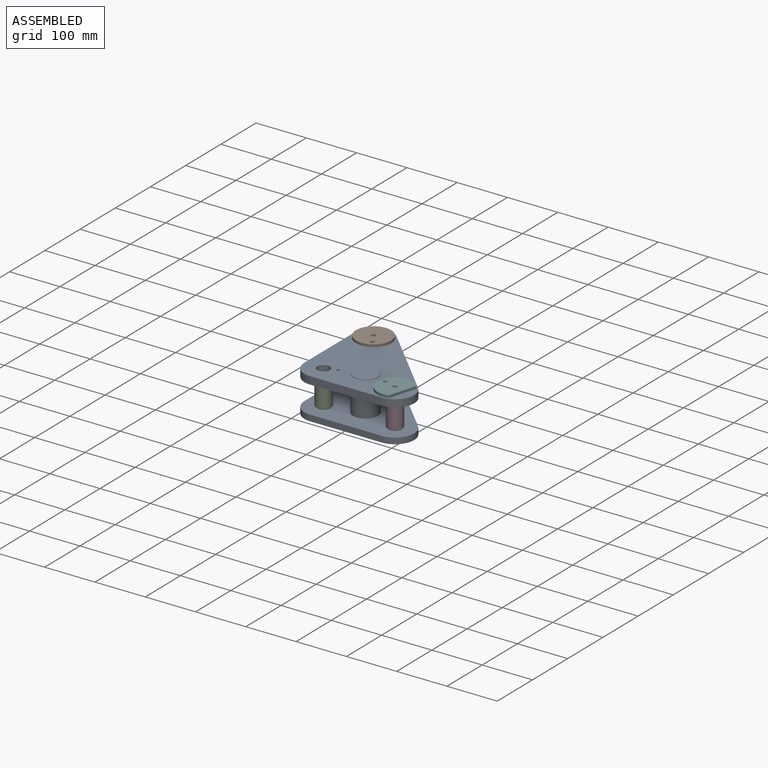
[diagram: assembled view]
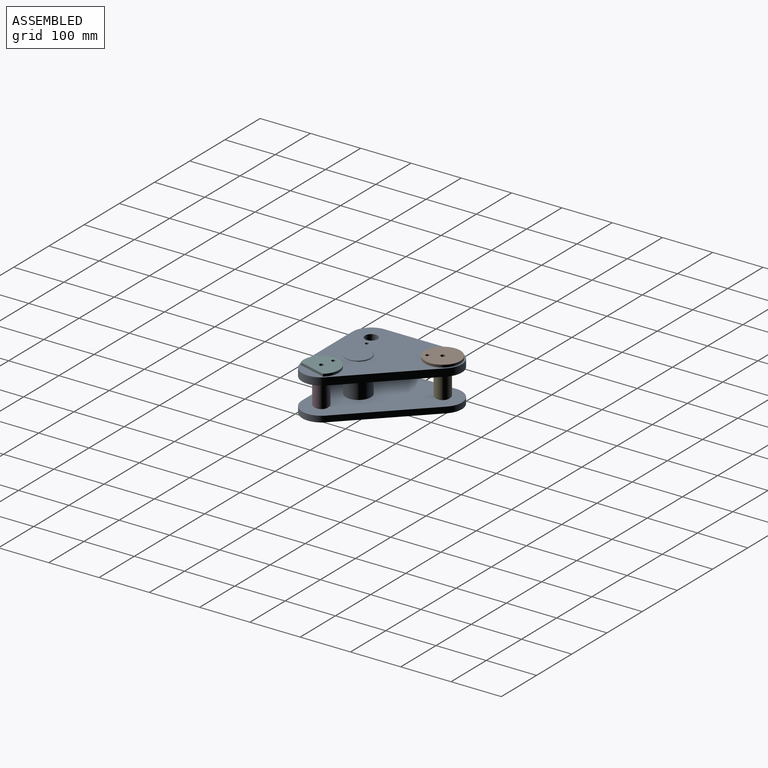
[diagram: assembled view, second angle]
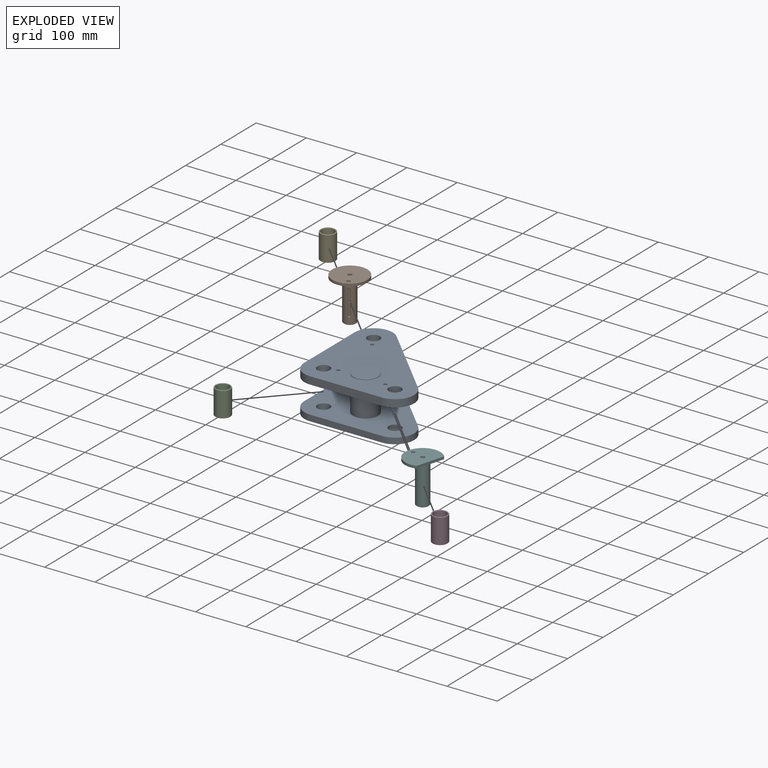
[diagram: exploded view]
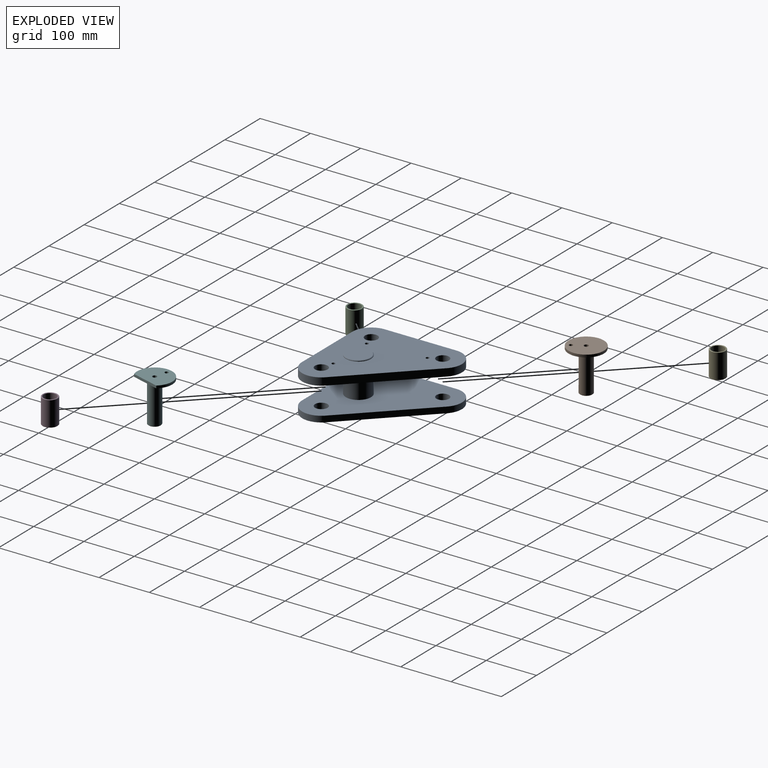
[diagram: exploded view, second angle]
FCSTD DOCUMENT  (FreeCAD 0.20R29177 +426 (Git))
Label: hovairGuidage
License: All rights reserved
LicenseURL: http://en.wikipedia.org/wiki/All_rights_reserved
objects: App::Link×7
EXTERNAL_REF file=hovairGuidageTriangle.FCStd obj=Body002
EXTERNAL_REF file=hovairGuidageAxe.FCStd obj=Body
EXTERNAL_REF file=hovairGuidageBague.FCStd obj=Body
EXTERNAL_REF file=hovairGuidageAxe.FCStd obj=Body001

FEATURE [App::Link] Link  label="triangle droit"
  LinkedObject = -> <external hovairGuidageTriangle.FCStd>#Body002
FEATURE [App::Link] Link001  label="axeTigeVerin"
  LinkPlacement = pos=(38,38,86) rot=(0.989016,0.147809,0;3.14159rad)
  LinkedObject = -> <external hovairGuidageAxe.FCStd>#Body
  Placement = pos=(38,38,86) rot=(0.989016,0.147809,0;3.14159rad)
FEATURE [App::Link] Link002  label="axeGalet"
  LinkPlacement = pos=(38,180,86) rot=(0.866025,-0.5,0;3.14159rad)
  LinkedObject = -> Link001
  Placement = pos=(38,180,86) rot=(0.866025,-0.5,0;3.14159rad)
FEATURE [App::Link] Link004  label="bague1"
  LinkPlacement = pos=(38,38,14) rot=(0,0,1;0rad)
  LinkedObject = -> <external hovairGuidageBague.FCStd>#Body
  Placement = pos=(38,38,14) rot=(0,0,1;0rad)
FEATURE [App::Link] Link005  label="bague2"
  LinkPlacement = pos=(180,38,14) rot=(0,0,1;0rad)
  LinkedObject = -> <external hovairGuidageBague.FCStd>#Body
  Placement = pos=(180,38,14) rot=(0,0,1;0rad)
FEATURE [App::Link] Link006  label="bague3"
  LinkPlacement = pos=(38,180,14) rot=(0,0,1;0rad)
  LinkedObject = -> <external hovairGuidageBague.FCStd>#Body
  Placement = pos=(38,180,14) rot=(0,0,1;0rad)
FEATURE [App::Link] Link007  label="axeCoupé"
  LinkPlacement = pos=(180,38,86) rot=(0.139173,0.990268,0;3.14159rad)
  LinkedObject = -> <external hovairGuidageAxe.FCStd>#Body001
  Placement = pos=(180,38,86) rot=(0.139173,0.990268,0;3.14159rad)

RESOLVED EXTERNAL PARTS (link-assembly join: the EXTERNAL_REF files above that resolve inside this repo's crawl, each included once):
---- part hovairGuidageAxe.FCStd = doc fcstd_eb16f9487026 ----
FCSTD DOCUMENT  (FreeCAD 0.20R29177 +426 (Git))
Label: hovairGuidageAxe
License: All rights reserved
LicenseURL: http://en.wikipedia.org/wiki/All_rights_reserved
objects: TechDraw::DrawViewDimension×17, Sketcher::SketchObject×7, TechDraw::DrawViewAnnotation×6, TechDraw::DrawLeaderLine×5, TechDraw::DrawViewBalloon×4, PartDesign::Pocket×3, TechDraw::DrawProjGroupItem×3, PartDesign::Pad×2, PartDesign::Plane×2, TechDraw::DrawSVGTemplate×2, PartDesign::Body×2, TechDraw::DrawViewSection×2, TechDraw::DrawProjGroup×2, TechDraw::DrawPage×2, PartDesign::Line×1, PartDesign::Groove×1, PartDesign::Hole×1, PartDesign::Chamfer×1, PartDesign::FeatureBase×1
note: 29 computed .brp shape members not serialized (recipe doc carries the construction recipe); baked Part::Feature solids carry a one-line shape summary decoded from their .brp

FEATURE [Sketcher::SketchObject] Sketch
  FullyConstrained = true
  MapMode = 5
  Support = -> [XY_Plane]
  sketch-geometry (1):
    g0: Circle CenterX=0 CenterY=0 CenterZ=0 NormalX=0 NormalY=0 NormalZ=1 AngleXU=0 Radius=35
  constraints (2):
    c: Coincident(g0,g-1)
    c: Diameter(g0) = 70
FEATURE [PartDesign::Pad] Pad  label="socle"
  Direction = (0,0,1)
  Length = 5
  Length2 = 10
  Profile = -> Sketch
  ReferenceAxis = -> Sketch [N_Axis]
  Type = 0
FEATURE [Sketcher::SketchObject] Sketch001
  FullyConstrained = true
  MapMode = 5
  Placement = pos=(0,0,5) rot=(0,0,1;0rad)
  Support = -> [Pad]
  sketch-geometry (1):
    g0: Circle CenterX=0 CenterY=0 CenterZ=0 NormalX=0 NormalY=0 NormalZ=1 AngleXU=0 Radius=12.5
  constraints (2):
    c: Coincident(g0,g-1)
    c: Diameter(g0) = 25
FEATURE [PartDesign::Pad] Pad001  label="arbre"
  BaseFeature = -> Pad
  Direction = (0,0,1)
  Length = 80
  Length2 = 10
  Profile = -> Sketch001
  ReferenceAxis = -> Sketch001 [N_Axis]
  Type = 0
FEATURE [PartDesign::Plane] DatumPlane
  Length = 87.3478
  MapMode = 3
  Placement = pos=(0,0,0) rot=(1,0,0;1.5708rad)
  ResizeMode = 0
  Support = -> [Pad001]
  Width = 127.527
FEATURE [Sketcher::SketchObject] Sketch002
  FullyConstrained = true
  MapMode = 5
  Placement = pos=(0,0,0) rot=(1,0,0;1.5708rad)
  Support = -> [DatumPlane]
  sketch-geometry (4):
    g0: LineSegment StartX=10.5 StartY=69 StartZ=0 EndX=10.5 EndY=21 EndZ=0
    g1: ArcOfCircle CenterX=13 CenterY=69 CenterZ=0 NormalX=0 NormalY=0 NormalZ=1 AngleXU=0 Radius=2.5 StartAngle=1.5708 EndAngle=3.1416
    g2: ArcOfCircle CenterX=13 CenterY=21 CenterZ=0 NormalX=0 NormalY=0 NormalZ=1 AngleXU=0 Radius=2.5 StartAngle=3.1416 EndAngle=4.71239
    g3: LineSegment StartX=13 StartY=71.5 StartZ=0 EndX=13 EndY=18.5 EndZ=0
  constraints (14):
    c: Vertical(g0)
    c: DistanceY(g0,g0) = 48
    c: Diameter(g1) = 5
    c: Coincident(g1,g0)
    c: Coincident(g2,g0)
    c: Diameter(g2) = 5
    c: Parallel(g0,g3)
    c: DistanceY(g3,g3) = 53
    c: Coincident(g1,g3)
    c: PointOnObject(g1,g3)
    c: Coincident(g2,g3)
    c: DistanceX(g0,g1) = 2.5
    c: DistanceY(g-1,g2) = 21
    c: DistanceX(g-1,g2) = 13
FEATURE [PartDesign::Line] DatumLine
  AttacherType = Attacher::AttachEngineLine
  Length = 20
  MapMode = 29
  Placement = pos=(13,0,0) rot=(0,1,0;3.14159rad)
  ResizeMode = 0
  Support = -> [Sketch002]
FEATURE [PartDesign::Groove] Groove  label="rainure"
  Angle = 360
  Axis = (0,-2e-16,-1)
  Base = (13,0,0)
  BaseFeature = -> Pad001
  Profile = -> Sketch002
  ReferenceAxis = -> DatumLine
FEATURE [PartDesign::Plane] DatumPlane001
  Length = 87.4488
  MapMode = 4
  Placement = pos=(0,0,0) rot=(0.57735,0.57735,0.57735;2.0944rad)
  ResizeMode = 0
  Support = -> [Pad001]
  Width = 127.539
FEATURE [Sketcher::SketchObject] Sketch003
  FullyConstrained = true
  MapMode = 5
  Placement = pos=(0,0,0) rot=(0.57735,0.57735,0.57735;2.0944rad)
  Support = -> [DatumPlane001]
  sketch-geometry (1):
    g0: Circle CenterX=0 CenterY=45 CenterZ=0 NormalX=0 NormalY=0 NormalZ=1 AngleXU=0 Radius=1.25
  constraints (3):
    c: DistanceY(g-1,g0) = 45
    c: DistanceX(g-1,g0) = 0
    c: Diameter(g0) = 2.5
FEATURE [PartDesign::Pocket] Pocket  label="canal"
  BaseFeature = -> Groove
  Direction = (-1,0,0)
  Length = 5
  Length2 = 5
  Profile = -> Sketch003
  ReferenceAxis = -> Sketch003 [N_Axis]
  Reversed = true
  Type = 1
FEATURE [Sketcher::SketchObject] Sketch004
  FullyConstrained = true
  MapMode = 5
  Placement = pos=(0,0,0) rot=(1,0,0;3.14159rad)
  Support = -> [Pocket]
  sketch-geometry (1):
    g0: Circle CenterX=25 CenterY=0 CenterZ=0 NormalX=0 NormalY=0 NormalZ=1 AngleXU=0 Radius=3.6
  constraints (3):
    c: PointOnObject(g0,g-1)
    c: DistanceX(g-1,g0) = 25
    c: Diameter(g0) = 7.2
FEATURE [PartDesign::Pocket] Pocket001  label="trouDeFixation"
  BaseFeature = -> Pocket
  Direction = (0,0,1)
  Length = 5
  Length2 = 5
  Profile = -> Sketch004
  ReferenceAxis = -> Sketch004 [N_Axis]
  Type = 1
FEATURE [Sketcher::SketchObject] Sketch005
  FullyConstrained = false
  MapMode = 5
  Placement = pos=(0,0,0) rot=(1,0,0;3.14159rad)
  Support = -> [Pocket001]
  sketch-geometry (1):
    g0: Circle CenterX=0 CenterY=0 CenterZ=0 NormalX=0 NormalY=0 NormalZ=1 AngleXU=0 Radius=12.5084
  constraints (1):
    c: Coincident(g0,g-1)
FEATURE [PartDesign::Hole] Hole
  BaseFeature = -> Pocket001
  CustomThreadClearance = 0
  Depth = 55
  DepthType = 0
  Diameter = 8.5
  DrillForDepth = false
  DrillPoint = 1
  DrillPointAngle = 118
  HoleCutCountersinkAngle = 90
  HoleCutCustomValues = false
  HoleCutDepth = 0
  HoleCutDiameter = 11.1
  HoleCutType = 0
  ModelThread = false
  Profile = -> Sketch005
  Tapered = false
  TaperedAngle = 90
  ThreadClass = 0
  ThreadDepth = 55
  ThreadDepthType = 0
  ThreadDirection = 0
  ThreadFit = 0
  ThreadSize = 18
  ThreadType = 1
  Threaded = true
  UseCustomThreadClearance = false
FEATURE [TechDraw::DrawSVGTemplate] Template
  EditableTexts = Designed_by_Name=Designed by Name; Drawing_number=Drawing number; FC-Date=Date; FC-SC=Scale; FC-SH=Sheet; FC-Title=Title; Subtitle=Subtitle; Weight=Weight
  Height = 210
  Orientation = 1
  Width = 297
FEATURE [PartDesign::Chamfer] Chamfer
  Angle = 45
  Base = -> Hole [Edge17]
  BaseFeature = -> Hole
  ChamferType = 0
  FlipDirection = false
  Size = 1
  Size2 = 1
  SupportTransform = false
  UseAllEdges = false
FEATURE [PartDesign::Body] Body  label="axe"
  Group = -> [Sketch,Pad,Sketch001,Pad001,DatumPlane,Sketch002,DatumLine,Groove,DatumPlane001,Sketch003,Pocket,Sketch004,Pocket001,Sketch005,Hole,Chamfer]
  Origin = -> Origin
  Tip = -> Chamfer
FEATURE [TechDraw::DrawProjGroupItem] ProjItem  label="Front"
  CoarseView = false
  Direction = (0,0,1)
  Focus = 100
  HardHidden = true
  IsoCount = 0
  IsoHidden = false
  IsoVisible = true
  LockPosition = true
  Perspective = false
  Rotation = 0
  RotationVector = (0,-1,0)
  ScaleType = 2
  SeamHidden = false
  SeamVisible = true
  SmoothHidden = false
  SmoothVisible = true
  Source = -> [Chamfer]
  Type = 0
  X = 0
  XDirection = (0,-1,0)
  Y = 0
FEATURE [TechDraw::DrawViewSection] SectionView
  BaseView = -> ProjItem
  CoarseView = false
  CutSurfaceDisplay = 2
  Direction = (0,-1,0)
  FileGeomPattern = <userpath>/AppData/Local/Programs/FreeCAD 0.20/data/Mod/TechDraw/PAT/FCPAT.pat
  FileHatchPattern = <userpath>/AppData/Local/Programs/FreeCAD 0.20/data/Mod/TechDraw/Patterns/simple.svg
  Focus = 100
  FuseBeforeCut = false
  HardHidden = false
  HatchScale = 1
  IsoCount = 0
  IsoHidden = false
  IsoVisible = true
  LockPosition = true
  NameGeomPattern = Diamant
  Perspective = false
  Rotation = 0
  ScaleType = 2
  SeamHidden = false
  SeamVisible = true
  SectionDirection = 1
  SectionNormal = (0,-1,0)
  SectionOrigin = (0.025,0,42.51)
  SectionSymbol = A
  SmoothHidden = false
  SmoothVisible = true
  Source = -> [Chamfer]
  X = 145.231
  XDirection = (0,0,-1)
  Y = 125.088
FEATURE [TechDraw::DrawViewSection] SectionView001
  BaseView = -> SectionView
  CoarseView = false
  CutSurfaceDisplay = 2
  Direction = (0,0,-1)
  FileGeomPattern = <userpath>/AppData/Local/Programs/FreeCAD 0.20/data/Mod/TechDraw/PAT/FCPAT.pat
  FileHatchPattern = <userpath>/AppData/Local/Programs/FreeCAD 0.20/data/Mod/TechDraw/Patterns/simple.svg
  Focus = 100
  FuseBeforeCut = false
  HardHidden = false
  HatchScale = 1
  IsoCount = 0
  IsoHidden = false
  IsoVisible = true
  LockPosition = true
  NameGeomPattern = Diamant
  Perspective = false
  Rotation = 0
  ScaleType = 2
  SeamHidden = false
  SeamVisible = true
  SectionDirection = 1
  SectionNormal = (0,0,-1)
  SectionOrigin = (0,17.5,45)
  SectionSymbol = B
  SmoothHidden = false
  SmoothVisible = true
  Source = -> [Chamfer]
  X = 45.6336
  XDirection = (0,1,0)
  Y = 125.088
FEATURE [PartDesign::FeatureBase] Clone
  BaseFeature = -> Body
FEATURE [Sketcher::SketchObject] Sketch006
  FullyConstrained = false
  MapMode = 5
  Placement = pos=(0,0,5) rot=(0,0,1;0rad)
  Support = -> [Clone]
  sketch-geometry (4):
    g0: LineSegment StartX=-45.8649 StartY=37.2212 StartZ=0 EndX=-20 EndY=37.2212 EndZ=0
    g1: LineSegment StartX=-20 StartY=37.2212 StartZ=0 EndX=-20 EndY=-43.7351 EndZ=0
    g2: LineSegment StartX=-20 StartY=-43.7351 StartZ=0 EndX=-45.8649 EndY=-43.7351 EndZ=0
    g3: LineSegment StartX=-45.8649 StartY=-43.7351 StartZ=0 EndX=-45.8649 EndY=37.2212 EndZ=0
  constraints (9):
    c: Coincident(g0,g1)
    c: Coincident(g1,g2)
    c: Coincident(g2,g3)
    c: Coincident(g3,g0)
    c: Horizontal(g0)
    c: Horizontal(g2)
    c: Vertical(g1)
    c: Vertical(g3)
    c: DistanceX(g0,g-1) = 20
FEATURE [PartDesign::Pocket] Pocket002
  BaseFeature = -> Clone
  Direction = (0,0,-1)
  Length = 5
  Length2 = 5
  Profile = -> Sketch006
  ReferenceAxis = -> Sketch006 [N_Axis]
  Type = 1
FEATURE [PartDesign::Body] Body001  label="axeCoupé"
  BaseFeature = -> Body
  Group = -> [Clone,Sketch006,Pocket002]
  Origin = -> Origin001
  Tip = -> Pocket002
FEATURE [TechDraw::DrawLeaderLine] LeaderLine
  AutoHorizontal = false
  EndSymbol = 7
  LeaderParent = -> SectionView
  LockPosition = true
  Rotation = 0
  Scalable = false
  ScaleType = 0
  StartSymbol = 0
  WayPoints = (2) [(0,0,0),(107.71,0,0)]
  X = -2.58379
  Y = 30.059
FEATURE [TechDraw::DrawLeaderLine] LeaderLine001
  AutoHorizontal = true
  EndSymbol = 7
  LeaderParent = -> SectionView
  LockPosition = true
  Rotation = 0
  Scalable = false
  ScaleType = 0
  StartSymbol = 0
  WayPoints = (2) [(0,0,0),(105.993,0,0)]
  X = -2.56286
  Y = -30.0156
FEATURE [TechDraw::DrawLeaderLine] LeaderLine002
  AutoHorizontal = true
  EndSymbol = 7
  LeaderParent = -> SectionView
  LockPosition = true
  Rotation = 0
  Scalable = false
  ScaleType = 0
  StartSymbol = 7
  WayPoints = (2) [(0,0,0),(0,0,0)]
  X = -2.53021
  Y = 29.868
FEATURE [TechDraw::DrawLeaderLine] LeaderLine003
  AutoHorizontal = false
  EndSymbol = 7
  LeaderParent = -> SectionView
  LockPosition = true
  Rotation = 0
  Scalable = false
  ScaleType = 0
  StartSymbol = 7
  WayPoints = (2) [(0,0,0),(-0.132979,602.237,0)]
  X = -2.47667
  Y = 30.1033
FEATURE [TechDraw::DrawViewAnnotation] Annotation
  Font = osifont
  LineSpace = 80
  LockPosition = false
  MaxWidth = -1
  Rotation = 0
  ScaleType = 0
  Text = B
  TextSize = 5
  TextStyle = 0
  X = 150.253
  Y = 100.234
FEATURE [TechDraw::DrawViewAnnotation] Annotation001
  Font = osifont
  LineSpace = 80
  LockPosition = false
  MaxWidth = -1
  Rotation = 0
  ScaleType = 0
  Text = B
  TextSize = 5
  TextStyle = 0
  X = 128.731
  Y = 154.896
FEATURE [TechDraw::DrawViewDimension] Dimension
  AngleOverride = false
  Arbitrary = false
  ArbitraryTolerances = false
  EqualTolerance = true
  ExtensionAngle = 0
  FormatSpec = %.2w
  FormatSpecOverTolerance = %+.2w
  FormatSpecUnderTolerance = %+.2w
  Inverted = false
  LineAngle = 0
  LockPosition = false
  MeasureType = 1
  OverTolerance = 0
  References2D = -> [ProjItem]
  Rotation = 0
  ScaleType = 0
  TheoreticalExact = false
  Type = 2
  UnderTolerance = 0
  X = 36.9797
  Y = 14.9752
FEATURE [TechDraw::DrawViewDimension] Dimension001
  AngleOverride = false
  Arbitrary = false
  ArbitraryTolerances = false
  EqualTolerance = true
  ExtensionAngle = 0
  FormatSpec = ⌀%.2w
  FormatSpecOverTolerance = %+.2w
  FormatSpecUnderTolerance = %+.2w
  Inverted = false
  LineAngle = 0
  LockPosition = false
  MeasureType = 1
  OverTolerance = 0
  References2D = -> [ProjItem]
  Rotation = 0
  ScaleType = 0
  TheoreticalExact = false
  Type = 5
  UnderTolerance = 0
  X = -13.1595
  Y = 50.4723
FEATURE [TechDraw::DrawLeaderLine] LeaderLine004
  AutoHorizontal = false
  EndSymbol = 7
  LeaderParent = -> SectionView
  LockPosition = true
  Rotation = 0
  Scalable = false
  ScaleType = 0
  StartSymbol = 7
  WayPoints = (4) [(0,0,0),(-301.398,0.387401,0),(-302.948,100.337,0),(0,100.337,0)]
  X = 42.5614
  Y = 5.06396
FEATURE [TechDraw::DrawViewDimension] Dimension003
  AngleOverride = false
  Arbitrary = true
  ArbitraryTolerances = false
  EqualTolerance = true
  ExtensionAngle = 0
  FormatSpec = M10
  FormatSpecOverTolerance = %+.2w
  FormatSpecUnderTolerance = %+.2w
  Inverted = false
  LineAngle = 0
  LockPosition = false
  MeasureType = 1
  OverTolerance = 0
  References2D = -> [SectionView]
  Rotation = 0
  ScaleType = 0
  TheoreticalExact = false
  Type = 2
  UnderTolerance = 0
  X = 49.2963
  Y = -10.293
FEATURE [TechDraw::DrawViewDimension] Dimension002
  AngleOverride = false
  Arbitrary = false
  ArbitraryTolerances = false
  EqualTolerance = true
  ExtensionAngle = 0
  FormatSpec = %.2w
  FormatSpecOverTolerance = %+.2w
  FormatSpecUnderTolerance = %+.2w
  Inverted = false
  LineAngle = 0
  LockPosition = false
  MeasureType = 1
  OverTolerance = 0
  References2D = -> [SectionView]
  Rotation = 0
  ScaleType = 0
  TheoreticalExact = false
  Type = 2
  UnderTolerance = 0
  X = 56.2924
  Y = 1.90033
FEATURE [TechDraw::DrawViewDimension] Dimension004
  AngleOverride = false
  Arbitrary = false
  ArbitraryTolerances = false
  EqualTolerance = false
  ExtensionAngle = 0
  FormatSpec = %.2w
  FormatSpecOverTolerance = %+.2w
  FormatSpecUnderTolerance = %+.2w
  Inverted = false
  LineAngle = 0
  LockPosition = false
  MeasureType = 1
  OverTolerance = 0
  References2D = -> [SectionView]
  Rotation = 0
  ScaleType = 0
  TheoreticalExact = false
  Type = 2
  UnderTolerance = -0.05
  X = -63.0676
  Y = 1.74324
FEATURE [TechDraw::DrawViewDimension] Dimension005
  AngleOverride = false
  Arbitrary = false
  ArbitraryTolerances = false
  EqualTolerance = true
  ExtensionAngle = 0
  FormatSpec = %.2w x45°
  FormatSpecOverTolerance = %+.2w
  FormatSpecUnderTolerance = %+.2w
  Inverted = false
  LineAngle = 0
  LockPosition = false
  MeasureType = 1
  OverTolerance = 0
  References2D = -> [SectionView]
  Rotation = 0
  ScaleType = 0
  TheoreticalExact = false
  Type = 1
  UnderTolerance = 0
  X = -52.2898
  Y = 41.53
FEATURE [TechDraw::DrawViewBalloon] Balloon
  BubbleShape = 7
  EndType = 7
  EndTypeScale = 1
  KinkLength = 5
  LockPosition = false
  OriginX = 37.1194
  OriginY = -22.8833
  Rotation = 0
  ScaleType = 0
  ShapeScale = 1
  SourceView = -> SectionView
  Text = 3,2
  TextWrapLen = -1
  X = 25.6235
  Y = -15.4237
FEATURE [TechDraw::DrawViewBalloon] Balloon001
  BubbleShape = 6
  EndType = 0
  EndTypeScale = 1
  KinkLength = 5
  LockPosition = false
  OriginX = -47.6881
  OriginY = 0.0800074
  Rotation = 0
  ScaleType = 0
  ShapeScale = 1
  SourceView = -> SectionView
  Text = ⟂|0,05|A
  TextWrapLen = -1
  X = -26.7526
  Y = -32.9986
FEATURE [TechDraw::DrawViewBalloon] Balloon003
  BubbleShape = 6
  EndType = 6
  EndTypeScale = 1
  KinkLength = 5
  LockPosition = false
  OriginX = 37.6725
  OriginY = -33.4487
  Rotation = 0
  ScaleType = 0
  ShapeScale = 1
  SourceView = -> SectionView
  Text = A
  TextWrapLen = -1
  X = 16.6079
  Y = -33.1243
FEATURE [TechDraw::DrawViewDimension] Dimension006
  AngleOverride = false
  Arbitrary = false
  ArbitraryTolerances = false
  EqualTolerance = true
  ExtensionAngle = 0
  FormatSpec = %.2w
  FormatSpecOverTolerance = %+.2w
  FormatSpecUnderTolerance = %+.2w
  Inverted = false
  LineAngle = 0
  LockPosition = false
  MeasureType = 1
  OverTolerance = 0
  References2D = -> [SectionView]
  Rotation = 0
  ScaleType = 0
  TheoreticalExact = false
  Type = 1
  UnderTolerance = 0
  X = -14.2297
  Y = 44.3108
FEATURE [TechDraw::DrawViewDimension] Dimension007
  AngleOverride = false
  Arbitrary = false
  ArbitraryTolerances = false
  EqualTolerance = true
  ExtensionAngle = 0
  FormatSpec = %.2w
  FormatSpecOverTolerance = %+.2w
  FormatSpecUnderTolerance = %+.2w
  Inverted = false
  LineAngle = 0
  LockPosition = false
  MeasureType = 1
  OverTolerance = 0
  References2D = -> [SectionView]
  Rotation = 0
  ScaleType = 0
  TheoreticalExact = false
  Type = 1
  UnderTolerance = 0
  X = 28.2703
  Y = 44.3108
FEATURE [TechDraw::DrawViewDimension] Dimension008
  AngleOverride = false
  Arbitrary = false
  ArbitraryTolerances = false
  EqualTolerance = true
  ExtensionAngle = 0
  FormatSpec = %.2w
  FormatSpecOverTolerance = %+.2w
  FormatSpecUnderTolerance = %+.2w
  Inverted = false
  LineAngle = 0
  LockPosition = false
  MeasureType = 1
  OverTolerance = 0
  References2D = -> [SectionView]
  Rotation = 0
  ScaleType = 0
  TheoreticalExact = false
  Type = 1
  UnderTolerance = 0
  X = 30.4672
  Y = 52.2793
FEATURE [TechDraw::DrawViewDimension] Dimension009
  AngleOverride = false
  Arbitrary = false
  ArbitraryTolerances = false
  EqualTolerance = true
  ExtensionAngle = 0
  FormatSpec = %.2w
  FormatSpecOverTolerance = %+.2w
  FormatSpecUnderTolerance = %+.2w
  Inverted = false
  LineAngle = 0
  LockPosition = false
  MeasureType = 1
  OverTolerance = 0
  References2D = -> [SectionView]
  Rotation = 0
  ScaleType = 0
  TheoreticalExact = false
  Type = 1
  UnderTolerance = 0
  X = -4.03278
  Y = 52.2793
FEATURE [TechDraw::DrawViewDimension] Dimension010
  AngleOverride = false
  Arbitrary = false
  ArbitraryTolerances = false
  EqualTolerance = true
  ExtensionAngle = 0
  FormatSpec = %.2w
  FormatSpecOverTolerance = %+.2w
  FormatSpecUnderTolerance = %+.2w
  Inverted = false
  LineAngle = 0
  LockPosition = false
  MeasureType = 1
  OverTolerance = 0
  References2D = -> [SectionView]
  Rotation = 0
  ScaleType = 0
  TheoreticalExact = false
  Type = 1
  UnderTolerance = 0
  X = -0.315315
  Y = 60.4347
FEATURE [TechDraw::DrawViewDimension] Dimension011
  AngleOverride = false
  Arbitrary = false
  ArbitraryTolerances = false
  EqualTolerance = true
  ExtensionAngle = 0
  FormatSpec = %.2w
  FormatSpecOverTolerance = %+.2w
  FormatSpecUnderTolerance = %+.2w
  Inverted = false
  LineAngle = 0
  LockPosition = false
  MeasureType = 1
  OverTolerance = 0
  References2D = -> [SectionView]
  Rotation = 0
  ScaleType = 0
  TheoreticalExact = false
  Type = 1
  UnderTolerance = 0
  X = 26.9745
  Y = -38.2583
FEATURE [TechDraw::DrawViewDimension] Dimension012
  AngleOverride = false
  Arbitrary = false
  ArbitraryTolerances = false
  EqualTolerance = true
  ExtensionAngle = 0
  FormatSpec = %.2w
  FormatSpecOverTolerance = %+.2w
  FormatSpecUnderTolerance = %+.2w
  Inverted = false
  LineAngle = 0
  LockPosition = false
  MeasureType = 1
  OverTolerance = 0
  References2D = -> [SectionView]
  Rotation = 0
  ScaleType = 0
  TheoreticalExact = false
  Type = 1
  UnderTolerance = 0
  X = 18.4718
  Y = -46.6468
FEATURE [TechDraw::DrawViewDimension] Dimension013
  AngleOverride = false
  Arbitrary = false
  ArbitraryTolerances = false
  EqualTolerance = true
  ExtensionAngle = 0
  FormatSpec = %.2w
  FormatSpecOverTolerance = %+.2w
  FormatSpecUnderTolerance = %+.2w
  Inverted = false
  LineAngle = 0
  LockPosition = false
  MeasureType = 1
  OverTolerance = 0
  References2D = -> [SectionView]
  Rotation = 0
  ScaleType = 0
  TheoreticalExact = false
  Type = 1
  UnderTolerance = 0
  X = 15
  Y = -57.6346
FEATURE [TechDraw::DrawViewBalloon] Balloon004
  BubbleShape = 7
  EndType = 7
  EndTypeScale = 1
  KinkLength = 5
  LockPosition = false
  OriginX = -51.0195
  OriginY = 13.1064
  Rotation = 0
  ScaleType = 0
  ShapeScale = 1
  SourceView = -> SectionView
  Text = 3.2
  TextWrapLen = -1
  X = -63.8649
  Y = 23.9097
FEATURE [TechDraw::DrawViewDimension] Dimension014
  AngleOverride = false
  Arbitrary = false
  ArbitraryTolerances = false
  EqualTolerance = true
  ExtensionAngle = 0
  FormatSpec = %.2w
  FormatSpecOverTolerance = %+.2w
  FormatSpecUnderTolerance = %+.2w
  Inverted = false
  LineAngle = 0
  LockPosition = false
  MeasureType = 1
  OverTolerance = 0
  References2D = -> [SectionView001]
  Rotation = 0
  ScaleType = 0
  TheoreticalExact = false
  Type = 2
  UnderTolerance = 0
  X = 13.3978
  Y = 22.2477
FEATURE [TechDraw::DrawViewDimension] Dimension015
  AngleOverride = false
  Arbitrary = false
  ArbitraryTolerances = false
  EqualTolerance = true
  ExtensionAngle = 0
  FormatSpec = R%.2w
  FormatSpecOverTolerance = %+.2w
  FormatSpecUnderTolerance = %+.2w
  Inverted = false
  LineAngle = 0
  LockPosition = false
  MeasureType = 1
  OverTolerance = 0
  References2D = -> [SectionView001]
  Rotation = 0
  ScaleType = 0
  TheoreticalExact = false
  Type = 4
  UnderTolerance = 0
  X = -9.47911
  Y = 30.6866
FEATURE [TechDraw::DrawViewAnnotation] Annotation002
  Font = osifont
  LineSpace = 80
  LockPosition = false
  MaxWidth = -1
  Rotation = 0
  ScaleType = 0
  Text = A-A
  TextSize = 8
  TextStyle = 0
  X = 142.454
  Y = 196.062
FEATURE [TechDraw::DrawViewAnnotation] Annotation003
  Font = osifont
  LineSpace = 80
  LockPosition = false
  MaxWidth = -1
  Rotation = 0
  ScaleType = 0
  Text = B-B
  TextSize = 8
  TextStyle = 0
  X = 40.1815
  Y = 194.657
FEATURE [TechDraw::DrawProjGroupItem] ProjItem001  label="FrontTopRight"
  CoarseView = false
  Direction = (0.57735,-0.57735,0.57735)
  Focus = 100
  HardHidden = false
  IsoCount = 0
  IsoHidden = false
  IsoVisible = true
  LockPosition = true
  Perspective = false
  Rotation = 0
  RotationVector = (1,0,0)
  ScaleType = 2
  SeamHidden = false
  SeamVisible = true
  SmoothHidden = false
  SmoothVisible = true
  Source = -> [Chamfer]
  Type = 7
  X = -186.324
  XDirection = (0,-0.707107,-0.707107)
  Y = -66.9498
FEATURE [TechDraw::DrawProjGroup] ProjGroup
  Anchor = -> ProjItem
  AutoDistribute = true
  LockPosition = false
  ProjectionType = 0
  Rotation = 0
  ScaleType = 0
  Source = -> [Chamfer]
  Views = -> [ProjItem,ProjItem001]
  X = 244.022
  Y = 125.088
  spacingX = 15
  spacingY = 15
FEATURE [TechDraw::DrawViewAnnotation] Annotation004
  Font = osifont
  LineSpace = 80
  LockPosition = false
  MaxWidth = -1
  Rotation = 0
  ScaleType = 0
  Text = VUE ISO
  TextSize = 8
  TextStyle = 0
  X = 60.6275
  Y = 23.3449
FEATURE [TechDraw::DrawPage] Page  label="Axe"
  KeepUpdated = true
  NextBalloonIndex = 6
  ProjectionType = 0
  Template = -> Template
  Views = -> [ProjGroup,SectionView,SectionView001,LeaderLine,LeaderLine001,LeaderLine002,LeaderLine003,Annotation,Annotation001,Dimension,Dimension001,LeaderLine004,Dimension002,Dimension003,Dimension004,Dimension005,Balloon,Balloon001,Balloon003,Dimension006,Dimension007,Dimension008,Dimension009,Dimension010,Dimension011,Dimension012,Dimension013,Balloon004,Dimension014,Dimension015,Annotation002,+2 more]
FEATURE [TechDraw::DrawSVGTemplate] Template001
  EditableTexts = Designed_by_Name=Designed by Name; Drawing_number=Drawing number; FC-Date=Date; FC-SC=Scale; FC-SH=Sheet; FC-Title=Title; Subtitle=Subtitle; Weight=Weight
  Height = 210
  Orientation = 1
  Width = 297
FEATURE [TechDraw::DrawProjGroupItem] ProjItem002  label="Front001"
  CoarseView = false
  Direction = (0,0,1)
  Focus = 100
  HardHidden = false
  IsoCount = 0
  IsoHidden = false
  IsoVisible = true
  LockPosition = true
  Perspective = false
  Rotation = 0
  RotationVector = (-1,0,0)
  ScaleType = 2
  SeamHidden = false
  SeamVisible = true
  SmoothHidden = false
  SmoothVisible = true
  Source = -> [Pocket002]
  Type = 0
  X = 0
  XDirection = (-1e-16,-1,0)
  Y = 0
FEATURE [TechDraw::DrawProjGroup] ProjGroup001
  Anchor = -> ProjItem002
  AutoDistribute = true
  LockPosition = false
  ProjectionType = 0
  Rotation = 0
  ScaleType = 0
  Source = -> [Pocket002]
  Views = -> [ProjItem002]
  X = 134.173
  Y = 158.626
  spacingX = 15
  spacingY = 15
FEATURE [TechDraw::DrawViewDimension] Dimension016
  AngleOverride = false
  Arbitrary = false
  ArbitraryTolerances = false
  EqualTolerance = true
  ExtensionAngle = 0
  FormatSpec = %.2w
  FormatSpecOverTolerance = %+.2w
  FormatSpecUnderTolerance = %+.2w
  Inverted = false
  LineAngle = 0
  LockPosition = false
  MeasureType = 1
  OverTolerance = 0
  References2D = -> [ProjItem002]
  Rotation = 0
  ScaleType = 0
  TheoreticalExact = false
  Type = 2
  UnderTolerance = 0
  X = 63.0749
  Y = -15
FEATURE [TechDraw::DrawViewAnnotation] Annotation005
  Font = osifont
  LineSpace = 80
  LockPosition = false
  MaxWidth = -1
  Rotation = 0
  ScaleType = 0
  Text = L'axe coupé est entièrement identique à l'axe normal, | exepté la partie coupé (seul côte de ce dessin)
  TextSize = 8
  TextStyle = 0
  X = 144.816
  Y = 96.8129
FEATURE [TechDraw::DrawPage] Page001  label="AxeCoupé"
  KeepUpdated = true
  NextBalloonIndex = 1
  ProjectionType = 0
  Template = -> Template001
  Views = -> [ProjGroup001,Dimension016,Annotation005]
---- part hovairGuidageBague.FCStd = doc fcstd_c3cd4f991f9e ----
FCSTD DOCUMENT  (FreeCAD 0.20R29177 +426 (Git))
Label: hovairGuidageBague
License: All rights reserved
LicenseURL: http://en.wikipedia.org/wiki/All_rights_reserved
objects: TechDraw::DrawViewDimension×4, Sketcher::SketchObject×1, PartDesign::Pad×1, PartDesign::Chamfer×1, PartDesign::Body×1, TechDraw::DrawSVGTemplate×1, TechDraw::DrawProjGroupItem×1, TechDraw::DrawProjGroup×1, TechDraw::DrawViewSection×1, TechDraw::DrawViewAnnotation×1, TechDraw::DrawPage×1
note: 6 computed .brp shape members not serialized (recipe doc carries the construction recipe); baked Part::Feature solids carry a one-line shape summary decoded from their .brp

FEATURE [Sketcher::SketchObject] Sketch
  FullyConstrained = true
  MapMode = 5
  Support = -> [XY_Plane]
  sketch-geometry (2):
    g0: Circle CenterX=0 CenterY=0 CenterZ=0 NormalX=0 NormalY=0 NormalZ=1 AngleXU=0 Radius=15
    g1: Circle CenterX=0 CenterY=0 CenterZ=0 NormalX=0 NormalY=0 NormalZ=1 AngleXU=0 Radius=12.5
  constraints (4):
    c: Coincident(g1,g0)
    c: Coincident(g0,g-1)
    c: Diameter(g1) = 25
    c: Diameter(g0) = 30
FEATURE [PartDesign::Pad] Pad
  Direction = (0,0,1)
  Length = 50
  Length2 = 10
  Profile = -> Sketch
  ReferenceAxis = -> Sketch [N_Axis]
  Type = 0
FEATURE [PartDesign::Chamfer] Chamfer
  Angle = 45
  Base = -> Pad [Edge3,Edge6,Edge2,Edge5]
  BaseFeature = -> Pad
  ChamferType = 0
  FlipDirection = false
  Size = 0.5
  Size2 = 1
  SupportTransform = false
  UseAllEdges = false
FEATURE [PartDesign::Body] Body  label="hovairGuidageBague"
  Group = -> [Sketch,Pad,Chamfer]
  Origin = -> Origin
  Tip = -> Chamfer
FEATURE [TechDraw::DrawSVGTemplate] Template
  EditableTexts = Designed_by_Name=Designed by Name; Drawing_number=Drawing number; FC-Date=Date; FC-SC=Scale; FC-SH=Sheet; FC-Title=Title; Subtitle=Subtitle; Weight=Weight
  Height = 210
  Orientation = 1
  Width = 297
FEATURE [TechDraw::DrawProjGroupItem] ProjItem  label="Front"
  CoarseView = false
  Direction = (0,0,1)
  Focus = 100
  HardHidden = false
  IsoCount = 0
  IsoHidden = false
  IsoVisible = true
  LockPosition = true
  Perspective = false
  Rotation = 0
  RotationVector = (1,0,0)
  Scale = 2
  ScaleType = 2
  SeamHidden = false
  SeamVisible = true
  SmoothHidden = false
  SmoothVisible = true
  Source = -> [Chamfer]
  Type = 0
  X = 0
  XDirection = (1,0,0)
  Y = 0
FEATURE [TechDraw::DrawProjGroup] ProjGroup
  Anchor = -> ProjItem
  AutoDistribute = true
  LockPosition = false
  ProjectionType = 0
  Rotation = 0
  Scale = 2
  ScaleType = 0
  Source = -> [Chamfer]
  Views = -> [ProjItem]
  X = 231.503
  Y = 121.721
  spacingX = 15
  spacingY = 15
FEATURE [TechDraw::DrawViewSection] SectionView  label="Section  - "
  BaseView = -> ProjItem
  CoarseView = false
  CutSurfaceDisplay = 2
  Direction = (1,0,0)
  FileGeomPattern = C:/Program Files/FreeCAD 0.21/data/Mod/TechDraw/PAT/FCPAT.pat
  FileHatchPattern = C:/Program Files/FreeCAD 0.21/data/Mod/TechDraw/Patterns/simple.svg
  Focus = 100
  FuseBeforeCut = false
  HardHidden = false
  HatchScale = 1
  IsoCount = 0
  IsoHidden = false
  IsoVisible = true
  LockPosition = false
  NameGeomPattern = Diamant
  Perspective = false
  Rotation = 90
  Scale = 2
  ScaleType = 2
  SeamHidden = false
  SeamVisible = true
  SectionDirection = -1
  SectionNormal = (1,0,0)
  SectionOrigin = (0,0,25)
  SectionSymbol = A
  SmoothHidden = false
  SmoothVisible = true
  Source = -> [Chamfer]
  X = 117.916
  XDirection = (0,1,0)
  Y = 121.721
FEATURE [TechDraw::DrawViewDimension] Dimension
  AngleOverride = false
  Arbitrary = false
  ArbitraryTolerances = false
  EqualTolerance = true
  ExtensionAngle = 0
  FormatSpec = %.2w
  FormatSpecOverTolerance = %+.2w
  FormatSpecUnderTolerance = %+.2w
  Inverted = false
  LineAngle = 0
  LockPosition = false
  MeasureType = 1
  OverTolerance = 0
  References2D = -> [SectionView]
  Rotation = 0
  Scale = 2
  ScaleType = 0
  TheoreticalExact = false
  Type = 1
  UnderTolerance = 0
  X = -2.92302
  Y = 52.8534
FEATURE [TechDraw::DrawViewDimension] Dimension001
  AngleOverride = false
  Arbitrary = true
  ArbitraryTolerances = false
  EqualTolerance = true
  ExtensionAngle = 0
  FormatSpec = 4 x (0.5x45°)
  FormatSpecOverTolerance = %+.2w
  FormatSpecUnderTolerance = %+.2w
  Inverted = false
  LineAngle = 0
  LockPosition = false
  MeasureType = 1
  OverTolerance = 0
  References2D = -> [SectionView]
  Rotation = 0
  Scale = 2
  ScaleType = 0
  TheoreticalExact = false
  Type = 1
  UnderTolerance = 0
  X = -74.6753
  Y = -60.6495
FEATURE [TechDraw::DrawViewAnnotation] Annotation
  Font = osifont
  LineSpace = 100
  LockPosition = false
  MaxWidth = -1
  Rotation = 0
  Scale = 2
  ScaleType = 0
  Text = A - A
  TextSize = 5
  TextStyle = 0
  X = 114.871
  Y = 192.952
FEATURE [TechDraw::DrawViewDimension] Dimension002
  AngleOverride = false
  Arbitrary = true
  ArbitraryTolerances = false
  EqualTolerance = true
  ExtensionAngle = 0
  FormatSpec = Ø25 E8
  FormatSpecOverTolerance = %+.2w
  FormatSpecUnderTolerance = %+.2w
  Inverted = false
  LineAngle = 0
  LockPosition = false
  MeasureType = 1
  OverTolerance = 0
  References2D = -> [SectionView]
  Rotation = 0
  Scale = 2
  ScaleType = 0
  TheoreticalExact = false
  Type = 2
  UnderTolerance = 0
  X = -74.8981
  Y = 2.9427
FEATURE [TechDraw::DrawViewDimension] Dimension003
  AngleOverride = false
  Arbitrary = true
  ArbitraryTolerances = false
  EqualTolerance = false
  ExtensionAngle = 0
  FormatSpec = Ø30 
  FormatSpecOverTolerance = %+.2w
  FormatSpecUnderTolerance = %+.2w
  Inverted = false
  LineAngle = 0
  LockPosition = false
  MeasureType = 1
  OverTolerance = 0.05
  References2D = -> [SectionView]
  Rotation = 0
  Scale = 2
  ScaleType = 0
  TheoreticalExact = false
  Type = 2
  UnderTolerance = 0
  X = -97.476
  Y = 3.82811
FEATURE [TechDraw::DrawPage] Page
  KeepUpdated = true
  NextBalloonIndex = 1
  ProjectionType = 0
  Scale = 2
  Template = -> Template
  Views = -> [ProjGroup,SectionView,Dimension,Dimension001,Annotation,Dimension002,Dimension003]
---- part hovairGuidageTriangle.FCStd = doc fcstd_2fbc72cc9c73 ----
FCSTD DOCUMENT  (FreeCAD 0.21R33668 +26 (Git))
Label: hovairGuidageTriangle
License: All rights reserved
LicenseURL: http://en.wikipedia.org/wiki/All_rights_reserved
objects: TechDraw::DrawViewDimension×35, TechDraw::DrawViewAnnotation×11, Sketcher::SketchObject×9, PartDesign::Pad×6, TechDraw::DrawProjGroupItem×5, TechDraw::DrawSVGTemplate×3, TechDraw::DrawProjGroup×3, TechDraw::DrawViewSection×3, TechDraw::DrawPage×3, PartDesign::Plane×2, PartDesign::Hole×2, PartDesign::Chamfer×2, PartDesign::Body×2, TechDraw::DrawViewBalloon×1
note: 91 computed .brp shape members not serialized (recipe doc carries the construction recipe); baked Part::Feature solids carry a one-line shape summary decoded from their .brp

FEATURE [Sketcher::SketchObject] Sketch006
  FullyConstrained = true
  MapMode = 5
  Support = -> [XY_Plane003]
  sketch-geometry (10):
    g0: ArcOfCircle CenterX=38 CenterY=38 CenterZ=0 NormalX=0 NormalY=0 NormalZ=1 AngleXU=0 Radius=38 StartAngle=3.14159 EndAngle=4.71239
    g1: ArcOfCircle CenterX=180 CenterY=38 CenterZ=0 NormalX=0 NormalY=0 NormalZ=1 AngleXU=0 Radius=38 StartAngle=4.71239 EndAngle=7.06858
    g2: LineSegment StartX=38 StartY=0 StartZ=0 EndX=180 EndY=0 EndZ=0
    g3: ArcOfCircle CenterX=38 CenterY=180 CenterZ=0 NormalX=0 NormalY=0 NormalZ=1 AngleXU=0 Radius=38 StartAngle=0.785398 EndAngle=3.14159
    g4: LineSegment StartX=64.8701 StartY=206.87 StartZ=0 EndX=206.87 EndY=64.8701 EndZ=0
    g5: LineSegment StartX=0 StartY=180 StartZ=0 EndX=0 EndY=38 EndZ=0
    g6: Circle CenterX=38 CenterY=180 CenterZ=0 NormalX=0 NormalY=0 NormalZ=1 AngleXU=0 Radius=12.5
    g7: Circle CenterX=180 CenterY=38 CenterZ=0 NormalX=0 NormalY=0 NormalZ=1 AngleXU=0 Radius=12.5
    g8: Circle CenterX=38 CenterY=38 CenterZ=0 NormalX=0 NormalY=0 NormalZ=1 AngleXU=0 Radius=12.5
    g9: Circle CenterX=106 CenterY=60 CenterZ=0 NormalX=0 NormalY=0 NormalZ=1 AngleXU=0 Radius=25
  constraints (26):
    c: Radius(g0) = 38
    c: Tangent(g0,g-2) = 1.5708
    c: Tangent(g0,g-1) = -1.5708
    c: Radius(g1) = 38
    c: Tangent(g1,g-1) = -1.5708
    c: Distance(g0,g1) = 142
    c: Coincident(g2,g1)
    c: Coincident(g2,g0)
    c: Radius(g3) = 38
    c: Tangent(g3,g-2) = 1.5708
    c: Tangent(g1,g4) = 1.5708
    c: Tangent(g3,g4) = 1.5708
    c: Coincident(g5,g0)
    c: Coincident(g5,g3)
    c: Coincident(g4,g3)
    c: Coincident(g4,g1)
    c: Distance(g0,g3) = 142
    c: Coincident(g3,g6)
    c: Diameter(g6) = 25
    c: Coincident(g7,g1)
    c: Diameter(g7) = 25
    c: Coincident(g8,g0)
    c: Diameter(g8) = 25
    c: Diameter(g9) = 50
    c: DistanceY(g0,g9) = 60
    c: DistanceX(g0,g9) = 106
FEATURE [PartDesign::Pad] Pad001  label="base de fixation des axes"
  Direction = (0,0,1)
  Length = 12
  Length2 = 10
  Profile = -> Sketch006
  ReferenceAxis = -> Sketch006 [N_Axis]
  Type = 0
FEATURE [Sketcher::SketchObject] Sketch
  ExternalGeometry = -> [Sketch006]
  FullyConstrained = true
  MapMode = 5
  Placement = pos=(0,0,0) rot=(1,0,0;3.14159rad)
  Support = -> [Pad001]
  sketch-geometry (1):
    g0: Circle CenterX=106 CenterY=-60 CenterZ=0 NormalX=0 NormalY=0 NormalZ=1 AngleXU=0 Radius=25
  constraints (2):
    c: Coincident(g0,g-3)
    c: Equal(g0,g-3)
FEATURE [PartDesign::Pad] Pad  label="Entretoise"
  BaseFeature = -> Pad001
  Direction = (0,0,-1)
  Length = 83
  Length2 = 10
  Profile = -> Sketch
  ReferenceAxis = -> Sketch [N_Axis]
  Reversed = true
  Type = 0
FEATURE [PartDesign::Plane] DatumPlane  label="planBase"
  AttachmentOffset = pos=(0,0,54) rot=(0,0,1;0rad)
  Length = 60
  MapMode = 5
  Placement = pos=(0,0,66) rot=(0,0,1;0rad)
  ResizeMode = 0
  Support = -> [Pad]
  Width = 60
FEATURE [Sketcher::SketchObject] Sketch007
  FullyConstrained = true
  MapMode = 5
  Placement = pos=(0,0,66) rot=(0,0,1;0rad)
  Support = -> [DatumPlane]
  expr: Constraints[0] = Sketch006.Constraints[0]
  expr: Constraints[16] = Sketch006.Constraints[16]
  expr: Constraints[18] = Sketch006.Constraints[18]
  expr: Constraints[20] = Sketch006.Constraints[20]
  expr: Constraints[22] = Sketch006.Constraints[22]
  expr: Constraints[23] = Sketch006.Constraints[23]
  expr: Constraints[24] = Sketch006.Constraints[24]
  expr: Constraints[25] = Sketch006.Constraints[25]
  expr: Constraints[3] = Sketch006.Constraints[3]
  expr: Constraints[5] = Sketch006.Constraints[5]
  expr: Constraints[8] = Sketch006.Constraints[8]
  sketch-geometry (10):
    g0: ArcOfCircle CenterX=38 CenterY=38 CenterZ=0 NormalX=0 NormalY=0 NormalZ=1 AngleXU=0 Radius=38 StartAngle=3.14159 EndAngle=4.71239
    g1: ArcOfCircle CenterX=180 CenterY=38 CenterZ=0 NormalX=0 NormalY=0 NormalZ=1 AngleXU=0 Radius=38 StartAngle=4.71239 EndAngle=7.06858
    g2: LineSegment StartX=38 StartY=0 StartZ=0 EndX=180 EndY=0 EndZ=0
    g3: ArcOfCircle CenterX=38 CenterY=180 CenterZ=0 NormalX=0 NormalY=0 NormalZ=1 AngleXU=0 Radius=38 StartAngle=0.785398 EndAngle=3.14159
    g4: LineSegment StartX=64.8701 StartY=206.87 StartZ=0 EndX=206.87 EndY=64.8701 EndZ=0
    g5: LineSegment StartX=0 StartY=180 StartZ=0 EndX=0 EndY=38 EndZ=0
    g6: Circle CenterX=38 CenterY=180 CenterZ=0 NormalX=0 NormalY=0 NormalZ=1 AngleXU=0 Radius=12.5
    g7: Circle CenterX=180 CenterY=38 CenterZ=0 NormalX=0 NormalY=0 NormalZ=1 AngleXU=0 Radius=12.5
    g8: Circle CenterX=38 CenterY=38 CenterZ=0 NormalX=0 NormalY=0 NormalZ=1 AngleXU=0 Radius=12.5
    g9: Circle CenterX=106 CenterY=60 CenterZ=0 NormalX=0 NormalY=0 NormalZ=1 AngleXU=0 Radius=25
  constraints (26):
    c: Radius(g0) = 38
    c: Tangent(g0,g-2) = 1.5708
    c: Tangent(g0,g-1) = -1.5708
    c: Radius(g1) = 38
    c: Tangent(g1,g-1) = -1.5708
    c: Distance(g0,g1) = 142
    c: Coincident(g2,g1)
    c: Coincident(g2,g0)
    c: Radius(g3) = 38
    c: Tangent(g3,g-2) = 1.5708
    c: Tangent(g1,g4) = 1.5708
    c: Tangent(g3,g4) = 1.5708
    c: Coincident(g5,g0)
    c: Coincident(g5,g3)
    c: Coincident(g4,g3)
    c: Coincident(g4,g1)
    c: Distance(g0,g3) = 142
    c: Coincident(g3,g6)
    c: Diameter(g6) = 25
    c: Coincident(g7,g1)
    c: Diameter(g7) = 25
    c: Coincident(g8,g0)
    c: Diameter(g8) = 25
    c: Diameter(g9) = 50
    c: DistanceY(g0,g9) = 60
    c: DistanceX(g0,g9) = 106
FEATURE [PartDesign::Pad] Pad002
  BaseFeature = -> Pad
  Direction = (0,0,1)
  Length = 15
  Length2 = 10
  Profile = -> Sketch007
  ReferenceAxis = -> Sketch007 [N_Axis]
  Type = 0
FEATURE [Sketcher::SketchObject] Sketch008
  ExternalGeometry = -> [Pad002]
  FullyConstrained = false
  MapMode = 5
  Placement = pos=(0,0,81) rot=(0,0,1;0rad)
  Support = -> [Pad002]
  sketch-geometry (9):
    g0: LineSegment StartX=-92.9805 StartY=411.142 StartZ=0 EndX=245.063 EndY=-185.406 EndZ=0
    g1: LineSegment StartX=243.321 StartY=104.427 StartZ=0 EndX=-106.422 EndY=-8.72462 EndZ=0
    g2: LineSegment StartX=-89.2896 StartY=118.059 StartZ=0 EndX=316.645 EndY=-2.62407 EndZ=0
    g3: GeomPoint X=50.3253 Y=158.249 Z=0
    g4: GeomPoint X=61.7861 Y=45.6955 Z=0
    g5: GeomPoint X=156.037 Y=45.1243 Z=0
    g6: Circle CenterX=50.3253 CenterY=158.249 CenterZ=0 NormalX=0 NormalY=0 NormalZ=1 AngleXU=0 Radius=2.5
    g7: Circle CenterX=156.037 CenterY=45.1243 CenterZ=0 NormalX=0 NormalY=0 NormalZ=1 AngleXU=0 Radius=2.5
    g8: Circle CenterX=61.7861 CenterY=45.6955 CenterZ=0 NormalX=0 NormalY=0 NormalZ=1 AngleXU=0 Radius=2.5
  constraints (18):
    c: PointOnObject(g-3,g0)
    c: PointOnObject(g-6,g0)
    c: PointOnObject(g-6,g1)
    c: PointOnObject(g-4,g1)
    c: PointOnObject(g-5,g2)
    c: PointOnObject(g-6,g2)
    c: PointOnObject(g5,g2)
    c: PointOnObject(g3,g0)
    c: PointOnObject(g4,g1)
    c: Distance(g4,g-4) = 25
    c: Distance(g5,g-5) = 25
    c: Distance(g3,g-3) = 25
    c: Coincident(g6,g3)
    c: Coincident(g7,g5)
    c: Coincident(g8,g4)
    c: Diameter(g8) = 5
    c: Equal(g8,g6)
    c: Equal(g8,g7)
FEATURE [PartDesign::Hole] Hole
  BaseFeature = -> Pad002
  CustomThreadClearance = 0
  Depth = 15
  DepthType = 0
  Diameter = 6.6
  DrillForDepth = false
  DrillPoint = 1
  DrillPointAngle = 118
  HoleCutCountersinkAngle = 90
  HoleCutCustomValues = false
  HoleCutDepth = 0
  HoleCutDiameter = 0
  HoleCutType = 0
  ModelThread = false
  Profile = -> Sketch008
  Tapered = false
  TaperedAngle = 90
  ThreadClass = 0
  ThreadDepth = 15
  ThreadDepthType = 0
  ThreadDirection = 0
  ThreadFit = 0
  ThreadSize = 14
  ThreadType = 1
  Threaded = false
  UseCustomThreadClearance = false
FEATURE [PartDesign::Chamfer] Chamfer
  Angle = 45
  Base = -> Hole [Edge70]
  BaseFeature = -> Hole
  ChamferType = 0
  FlipDirection = false
  Size = 1
  Size2 = 1
  SupportTransform = false
  UseAllEdges = false
FEATURE [Sketcher::SketchObject] Sketch010
  FullyConstrained = true
  MapMode = 5
  Support = -> [XY_Plane004]
  sketch-geometry (10):
    g0: ArcOfCircle CenterX=38 CenterY=38 CenterZ=0 NormalX=0 NormalY=0 NormalZ=1 AngleXU=0 Radius=38 StartAngle=3.14159 EndAngle=4.71239
    g1: ArcOfCircle CenterX=180 CenterY=38 CenterZ=0 NormalX=0 NormalY=0 NormalZ=1 AngleXU=0 Radius=38 StartAngle=4.71239 EndAngle=7.06858
    g2: LineSegment StartX=38 StartY=0 StartZ=0 EndX=180 EndY=0 EndZ=0
    g3: ArcOfCircle CenterX=38 CenterY=180 CenterZ=0 NormalX=0 NormalY=0 NormalZ=1 AngleXU=0 Radius=38 StartAngle=0.785398 EndAngle=3.14159
    g4: LineSegment StartX=64.8701 StartY=206.87 StartZ=0 EndX=206.87 EndY=64.8701 EndZ=0
    g5: LineSegment StartX=0 StartY=180 StartZ=0 EndX=0 EndY=38 EndZ=0
    g6: Circle CenterX=38 CenterY=180 CenterZ=0 NormalX=0 NormalY=0 NormalZ=1 AngleXU=0 Radius=12.5
    g7: Circle CenterX=180 CenterY=38 CenterZ=0 NormalX=0 NormalY=0 NormalZ=1 AngleXU=0 Radius=12.5
    g8: Circle CenterX=38 CenterY=38 CenterZ=0 NormalX=0 NormalY=0 NormalZ=1 AngleXU=0 Radius=12.5
    g9: Circle CenterX=60 CenterY=106 CenterZ=0 NormalX=0 NormalY=0 NormalZ=1 AngleXU=0 Radius=25
  constraints (26):
    c: Radius(g0) = 38
    c: Tangent(g0,g-2) = 1.5708
    c: Tangent(g0,g-1) = -1.5708
    c: Radius(g1) = 38
    c: Tangent(g1,g-1) = -1.5708
    c: Distance(g0,g1) = 142
    c: Coincident(g2,g1)
    c: Coincident(g2,g0)
    c: Radius(g3) = 38
    c: Tangent(g3,g-2) = 1.5708
    c: Tangent(g1,g4) = 1.5708
    c: Tangent(g3,g4) = 1.5708
    c: Coincident(g5,g0)
    c: Coincident(g5,g3)
    c: Coincident(g4,g3)
    c: Coincident(g4,g1)
    c: Distance(g0,g3) = 142
    c: Coincident(g3,g6)
    c: Diameter(g6) = 25
    c: Coincident(g7,g1)
    c: Diameter(g7) = 25
    c: Coincident(g8,g0)
    c: Diameter(g8) = 25
    c: Diameter(g9) = 50
    c: DistanceY(g0,g9) = 106
    c: DistanceX(g0,g9) = 60
FEATURE [PartDesign::Pad] Pad004  label="base de fixation des axes001"
  Direction = (0,0,1)
  Length = 15
  Length2 = 10
  Profile = -> Sketch010
  ReferenceAxis = -> Sketch010 [N_Axis]
  Type = 0
FEATURE [Sketcher::SketchObject] Sketch009
  ExternalGeometry = -> [Sketch010]
  FullyConstrained = true
  MapMode = 5
  Placement = pos=(0,0,0) rot=(1,0,0;3.14159rad)
  Support = -> [Pad004]
  sketch-geometry (1):
    g0: Circle CenterX=60 CenterY=-106 CenterZ=0 NormalX=0 NormalY=0 NormalZ=1 AngleXU=0 Radius=25
  constraints (2):
    c: Coincident(g0,g-3)
    c: Equal(g0,g-3)
FEATURE [PartDesign::Pad] Pad003  label="Entretoise001"
  BaseFeature = -> Pad004
  Direction = (0,0,-1)
  Length = 86
  Length2 = 10
  Profile = -> Sketch009
  ReferenceAxis = -> Sketch009 [N_Axis]
  Reversed = true
  Type = 0
FEATURE [PartDesign::Plane] DatumPlane001  label="planBase001"
  AttachmentOffset = pos=(0,0,54) rot=(0,0,1;0rad)
  Length = 60
  MapMode = 5
  Placement = pos=(0,0,69) rot=(0,0,1;0rad)
  ResizeMode = 0
  Support = -> [Pad003]
  Width = 60
FEATURE [Sketcher::SketchObject] Sketch011
  FullyConstrained = true
  MapMode = 5
  Placement = pos=(0,0,69) rot=(0,0,1;0rad)
  Support = -> [DatumPlane001]
  expr: Constraints[0] = Sketch010.Constraints[0]
  expr: Constraints[16] = Sketch010.Constraints[16]
  expr: Constraints[18] = Sketch010.Constraints[18]
  expr: Constraints[20] = Sketch010.Constraints[20]
  expr: Constraints[22] = Sketch010.Constraints[22]
  expr: Constraints[23] = Sketch010.Constraints[23]
  expr: Constraints[24] = Sketch010.Constraints[24]
  expr: Constraints[25] = Sketch010.Constraints[25]
  expr: Constraints[3] = Sketch010.Constraints[3]
  expr: Constraints[5] = Sketch010.Constraints[5]
  expr: Constraints[8] = Sketch010.Constraints[8]
  sketch-geometry (10):
    g0: ArcOfCircle CenterX=38 CenterY=38 CenterZ=0 NormalX=0 NormalY=0 NormalZ=1 AngleXU=0 Radius=38 StartAngle=3.14159 EndAngle=4.71239
    g1: ArcOfCircle CenterX=180 CenterY=38 CenterZ=0 NormalX=0 NormalY=0 NormalZ=1 AngleXU=0 Radius=38 StartAngle=4.71239 EndAngle=7.06858
    g2: LineSegment StartX=38 StartY=0 StartZ=0 EndX=180 EndY=0 EndZ=0
    g3: ArcOfCircle CenterX=38 CenterY=180 CenterZ=0 NormalX=0 NormalY=0 NormalZ=1 AngleXU=0 Radius=38 StartAngle=0.785398 EndAngle=3.14159
    g4: LineSegment StartX=64.8701 StartY=206.87 StartZ=0 EndX=206.87 EndY=64.8701 EndZ=0
    g5: LineSegment StartX=0 StartY=180 StartZ=0 EndX=0 EndY=38 EndZ=0
    g6: Circle CenterX=38 CenterY=180 CenterZ=0 NormalX=0 NormalY=0 NormalZ=1 AngleXU=0 Radius=12.5
    g7: Circle CenterX=180 CenterY=38 CenterZ=0 NormalX=0 NormalY=0 NormalZ=1 AngleXU=0 Radius=12.5
    g8: Circle CenterX=38 CenterY=38 CenterZ=0 NormalX=0 NormalY=0 NormalZ=1 AngleXU=0 Radius=12.5
    g9: Circle CenterX=60 CenterY=106 CenterZ=0 NormalX=0 NormalY=0 NormalZ=1 AngleXU=0 Radius=25
  constraints (26):
    c: Radius(g0) = 38
    c: Tangent(g0,g-2) = 1.5708
    c: Tangent(g0,g-1) = -1.5708
    c: Radius(g1) = 38
    c: Tangent(g1,g-1) = -1.5708
    c: Distance(g0,g1) = 142
    c: Coincident(g2,g1)
    c: Coincident(g2,g0)
    c: Radius(g3) = 38
    c: Tangent(g3,g-2) = 1.5708
    c: Tangent(g1,g4) = 1.5708
    c: Tangent(g3,g4) = 1.5708
    c: Coincident(g5,g0)
    c: Coincident(g5,g3)
    c: Coincident(g4,g3)
    c: Coincident(g4,g1)
    c: Distance(g0,g3) = 142
    c: Coincident(g3,g6)
    c: Diameter(g6) = 25
    c: Coincident(g7,g1)
    c: Diameter(g7) = 25
    c: Coincident(g8,g0)
    c: Diameter(g8) = 25
    c: Diameter(g9) = 50
    c: DistanceY(g0,g9) = 106
    c: DistanceX(g0,g9) = 60
FEATURE [PartDesign::Pad] Pad005
  BaseFeature = -> Pad003
  Direction = (0,0,1)
  Length = 15
  Length2 = 10
  Profile = -> Sketch011
  ReferenceAxis = -> Sketch011 [N_Axis]
  Type = 0
FEATURE [Sketcher::SketchObject] Sketch012
  ExternalGeometry = -> [Pad005]
  FullyConstrained = false
  MapMode = 5
  Placement = pos=(0,0,84) rot=(0,0,1;0rad)
  Support = -> [Pad005]
  sketch-geometry (9):
    g0: LineSegment StartX=-29.8325 StartY=408.164 StartZ=0 EndX=147.908 EndY=-189.691 EndZ=0
    g1: LineSegment StartX=139.234 StartY=350.905 StartZ=0 EndX=-31.2765 EndY=-176.127 EndZ=0
    g2: LineSegment StartX=-79.9504 StartY=185.305 StartZ=0 EndX=317.641 EndY=-39.9967 EndZ=0
    g3: GeomPoint X=45.1243 Y=156.037 Z=0
    g4: GeomPoint X=45.6955 Y=61.7861 Z=0
    g5: GeomPoint X=158.249 Y=50.3253 Z=0
    g6: Circle CenterX=45.1243 CenterY=156.037 CenterZ=0 NormalX=0 NormalY=0 NormalZ=1 AngleXU=0 Radius=2.5
    g7: Circle CenterX=158.249 CenterY=50.3253 CenterZ=0 NormalX=0 NormalY=0 NormalZ=1 AngleXU=0 Radius=2.5
    g8: Circle CenterX=45.6955 CenterY=61.7861 CenterZ=0 NormalX=0 NormalY=0 NormalZ=1 AngleXU=0 Radius=2.5
  constraints (18):
    c: PointOnObject(g-3,g0)
    c: PointOnObject(g-6,g0)
    c: PointOnObject(g-6,g1)
    c: PointOnObject(g-4,g1)
    c: PointOnObject(g-5,g2)
    c: PointOnObject(g-6,g2)
    c: PointOnObject(g5,g2)
    c: PointOnObject(g3,g0)
    c: PointOnObject(g4,g1)
    c: Distance(g4,g-4) = 25
    c: Distance(g5,g-5) = 25
    c: Distance(g3,g-3) = 25
    c: Coincident(g6,g3)
    c: Coincident(g7,g5)
    c: Coincident(g8,g4)
    c: Diameter(g8) = 5
    c: Equal(g8,g6)
    c: Equal(g8,g7)
FEATURE [PartDesign::Hole] Hole001
  BaseFeature = -> Pad005
  CustomThreadClearance = 0
  Depth = 15
  DepthType = 0
  Diameter = 6.6
  DrillForDepth = false
  DrillPoint = 1
  DrillPointAngle = 118
  HoleCutCountersinkAngle = 90
  HoleCutCustomValues = false
  HoleCutDepth = 0
  HoleCutDiameter = 6.1
  HoleCutType = 0
  ModelThread = false
  Profile = -> Sketch012
  Tapered = false
  TaperedAngle = 90
  ThreadClass = 0
  ThreadDepth = 15
  ThreadDepthType = 0
  ThreadDirection = 0
  ThreadFit = 0
  ThreadSize = 14
  ThreadType = 1
  Threaded = false
  UseCustomThreadClearance = false
FEATURE [PartDesign::Chamfer] Chamfer001
  Angle = 45
  Base = -> Hole001 [Edge70]
  BaseFeature = -> Hole001
  ChamferType = 0
  FlipDirection = false
  Size = 1
  Size2 = 1
  SupportTransform = false
  UseAllEdges = false
FEATURE [PartDesign::Body] Body003  label="triangleGauche"
  Group = -> [Sketch010,Pad004,Sketch009,Pad003,DatumPlane001,Sketch011,Pad005,Sketch012,Hole001,Chamfer001]
  Origin = -> Origin004
  Tip = -> Chamfer001
FEATURE [TechDraw::DrawSVGTemplate] Template
  EditableTexts = Designed_by_Name=Designed by Name; Drawing_number=Drawing number; FC-Date=Date; FC-SC=Scale; FC-SH=Sheet; FC-Title=Title; Subtitle=Subtitle; Weight=Weight
  Height = 210
  Orientation = 1
  Width = 297
  expr: Label = Template
FEATURE [TechDraw::DrawProjGroupItem] ProjItem  label="Front"
  CoarseView = false
  Direction = (0,0,1)
  Focus = 100
  HardHidden = false
  IsoCount = 0
  IsoHidden = false
  IsoVisible = true
  LockPosition = true
  Perspective = false
  Rotation = 0
  RotationVector = (-1,0,0)
  Scale = 0.5
  ScaleType = 2
  ScrubCount = 0
  SeamHidden = false
  SeamVisible = true
  SmoothHidden = false
  SmoothVisible = true
  Source = -> [Chamfer]
  Type = 0
  X = 0
  XDirection = (2e-16,-1,0)
  Y = 0
FEATURE [TechDraw::DrawProjGroupItem] ProjItem001  label="Left"
  CoarseView = false
  Direction = (-2e-16,1,1e-16)
  Focus = 100
  HardHidden = false
  IsoCount = 0
  IsoHidden = false
  IsoVisible = true
  LockPosition = false
  Perspective = false
  Rotation = 0
  RotationVector = (1,0,0)
  ScaleType = 2
  ScrubCount = 0
  SeamHidden = false
  SeamVisible = true
  SmoothHidden = false
  SmoothVisible = true
  Source = -> [Chamfer]
  Type = 1
  X = 90.25
  XDirection = (0,-1e-16,1)
  Y = 0
FEATURE [TechDraw::DrawProjGroup] ProjGroup
  Anchor = -> ProjItem
  AutoDistribute = true
  LockPosition = false
  ProjectionType = 0
  Rotation = 0
  Scale = 0.5
  ScaleType = 0
  Source = -> [Chamfer]
  Views = -> [ProjItem,ProjItem001]
  X = 94.985
  Y = 133.767
  spacingX = 15
  spacingY = 15
FEATURE [TechDraw::DrawViewDimension] Dimension
  AngleOverride = false
  Arbitrary = false
  ArbitraryTolerances = false
  EqualTolerance = true
  ExtensionAngle = 0
  FormatSpec = %.2w
  FormatSpecOverTolerance = %+.2w
  FormatSpecUnderTolerance = %+.2w
  Inverted = false
  LineAngle = 0
  LockPosition = false
  MeasureType = 1
  OverTolerance = 0
  References2D = -> [ProjItem001]
  Rotation = 0
  Scale = 0.5
  ScaleType = 0
  TheoreticalExact = false
  Type = 1
  UnderTolerance = 0
  X = -2.20172
  Y = -62.1546
FEATURE [TechDraw::DrawViewDimension] Dimension003
  AngleOverride = false
  Arbitrary = false
  ArbitraryTolerances = false
  EqualTolerance = true
  ExtensionAngle = 0
  FormatSpec = %.2w
  FormatSpecOverTolerance = %+.2w
  FormatSpecUnderTolerance = %+.2w
  Inverted = false
  LineAngle = 0
  LockPosition = false
  MeasureType = 1
  OverTolerance = 0
  References2D = -> [ProjItem001]
  Rotation = 0
  Scale = 0.5
  ScaleType = 0
  TheoreticalExact = false
  Type = 1
  UnderTolerance = 0
  X = 51.2517
  Y = 24.673
FEATURE [Sketcher::SketchObject] Sketch013
  ExternalGeometry = -> [Chamfer]
  FullyConstrained = false
  MapMode = 5
  Placement = pos=(0,0,81) rot=(0,0,1;0rad)
  Support = -> [Chamfer]
  sketch-geometry (5):
    g0: LineSegment StartX=0 StartY=158.249 StartZ=0 EndX=50.3253 EndY=158.249 EndZ=0
    g1: LineSegment StartX=50.3253 StartY=158.249 StartZ=0 EndX=50.3253 EndY=45.6955 EndZ=0
    g2: LineSegment StartX=50.3253 StartY=45.6955 StartZ=0 EndX=144.123 EndY=45.6955 EndZ=0
    g3: LineSegment StartX=144.123 StartY=45.1243 StartZ=0 EndX=236.221 EndY=45.1243 EndZ=0
    g4: LineSegment StartX=144.123 StartY=45.6955 StartZ=0 EndX=144.123 EndY=45.1243 EndZ=0
  constraints (13):
    c: Coincident(g0,g-3)
    c: Horizontal(g0)
    c: PointOnObject(g0,g-2)
    c: Coincident(g1,g0)
    c: Vertical(g1)
    c: Coincident(g2,g1)
    c: PointOnObject(g-4,g2)
    c: Horizontal(g2)
    c: Horizontal(g3)
    c: PointOnObject(g-5,g3)
    c: Coincident(g4,g3)
    c: Coincident(g2,g4)
    c: Vertical(g4)
FEATURE [PartDesign::Body] Body002  label="triangle droit"
  Group = -> [Sketch006,Pad001,Sketch,Pad,DatumPlane,Sketch007,Pad002,Sketch008,Hole,Chamfer,Sketch013]
  Origin = -> Origin003
  Tip = -> Chamfer
FEATURE [TechDraw::DrawViewDimension] Dimension004
  AngleOverride = false
  Arbitrary = false
  ArbitraryTolerances = false
  EqualTolerance = true
  ExtensionAngle = 0
  FormatSpec = R%.2w
  FormatSpecOverTolerance = %+.2w
  FormatSpecUnderTolerance = %+.2w
  Inverted = false
  LineAngle = 0
  LockPosition = false
  MeasureType = 1
  OverTolerance = 0
  References2D = -> [ProjItem]
  Rotation = 0
  Scale = 0.5
  ScaleType = 0
  TheoreticalExact = false
  Type = 4
  UnderTolerance = 0
  X = 54.0861
  Y = 56.9792
FEATURE [TechDraw::DrawViewDimension] Dimension005
  AngleOverride = false
  Arbitrary = true
  ArbitraryTolerances = false
  EqualTolerance = true
  ExtensionAngle = 0
  FormatSpec = M6
  FormatSpecOverTolerance = %+.2w
  FormatSpecUnderTolerance = %+.2w
  Inverted = false
  LineAngle = 0
  LockPosition = false
  MeasureType = 1
  OverTolerance = 0
  References2D = -> [ProjItem]
  Rotation = 0
  Scale = 0.5
  ScaleType = 0
  TheoreticalExact = false
  Type = 5
  UnderTolerance = 0
  X = 13.1733
  Y = 30.3827
FEATURE [TechDraw::DrawViewDimension] Dimension006
  AngleOverride = false
  Arbitrary = false
  ArbitraryTolerances = false
  EqualTolerance = true
  ExtensionAngle = 0
  FormatSpec = ⌀%.2w
  FormatSpecOverTolerance = %+.2w
  FormatSpecUnderTolerance = %+.2w
  Inverted = false
  LineAngle = 0
  LockPosition = false
  MeasureType = 1
  OverTolerance = 0
  References2D = -> [ProjItem]
  Rotation = 0
  Scale = 0.5
  ScaleType = 0
  TheoreticalExact = false
  Type = 5
  UnderTolerance = 0
  X = 18.3828
  Y = 42.1273
FEATURE [TechDraw::DrawViewDimension] Dimension007
  AngleOverride = false
  Arbitrary = true
  ArbitraryTolerances = false
  EqualTolerance = true
  ExtensionAngle = 0
  FormatSpec = 200
  Inverted = false
  LineAngle = 0
  LockPosition = false
  MeasureType = 1
  OverTolerance = 0
  References2D = -> [ProjItem]
  Rotation = 0
  Scale = 0.5
  ScaleType = 0
  TheoreticalExact = false
  Type = 0
  UnderTolerance = 0
  X = -18.8935
  Y = 32.6274
FEATURE [TechDraw::DrawViewDimension] Dimension008
  AngleOverride = false
  Arbitrary = false
  ArbitraryTolerances = false
  EqualTolerance = true
  ExtensionAngle = 0
  FormatSpec = %.2w
  FormatSpecOverTolerance = %+.2w
  FormatSpecUnderTolerance = %+.2w
  Inverted = false
  LineAngle = 0
  LockPosition = false
  MeasureType = 1
  OverTolerance = 0
  References2D = -> [ProjItem]
  Rotation = 0
  Scale = 0.5
  ScaleType = 0
  TheoreticalExact = false
  Type = 2
  UnderTolerance = 0
  X = 66.2444
  Y = -39.7903
FEATURE [TechDraw::DrawViewDimension] Dimension009
  AngleOverride = false
  Arbitrary = false
  ArbitraryTolerances = false
  EqualTolerance = true
  ExtensionAngle = 0
  FormatSpec = %.2w
  FormatSpecOverTolerance = %+.2w
  FormatSpecUnderTolerance = %+.2w
  Inverted = false
  LineAngle = 0
  LockPosition = false
  MeasureType = 1
  OverTolerance = 0
  References2D = -> [ProjItem]
  Rotation = 0
  Scale = 0.5
  ScaleType = 0
  TheoreticalExact = false
  Type = 2
  UnderTolerance = 0
  X = 66.4544
  Y = -1.17084
FEATURE [TechDraw::DrawViewDimension] Dimension010
  AngleOverride = false
  Arbitrary = false
  ArbitraryTolerances = false
  EqualTolerance = true
  ExtensionAngle = 0
  FormatSpec = %.2w
  FormatSpecOverTolerance = %+.2w
  FormatSpecUnderTolerance = %+.2w
  Inverted = false
  LineAngle = 0
  LockPosition = false
  MeasureType = 1
  OverTolerance = 0
  References2D = -> [ProjItem]
  Rotation = 0
  Scale = 0.5
  ScaleType = 0
  TheoreticalExact = false
  Type = 1
  UnderTolerance = 0
  X = 45.6795
  Y = -66.2972
FEATURE [TechDraw::DrawViewDimension] Dimension011
  AngleOverride = false
  Arbitrary = false
  ArbitraryTolerances = false
  EqualTolerance = true
  ExtensionAngle = 0
  FormatSpec = %.2w
  FormatSpecOverTolerance = %+.2w
  FormatSpecUnderTolerance = %+.2w
  Inverted = false
  LineAngle = 0
  LockPosition = false
  MeasureType = 1
  OverTolerance = 0
  References2D = -> [ProjItem]
  Rotation = 0
  Scale = 0.5
  ScaleType = 0
  TheoreticalExact = false
  Type = 1
  UnderTolerance = 0
  X = 4.75673
  Y = -64.2585
FEATURE [TechDraw::DrawViewDimension] Dimension012
  AngleOverride = false
  Arbitrary = false
  ArbitraryTolerances = false
  EqualTolerance = true
  ExtensionAngle = 0
  FormatSpec = %.2w
  FormatSpecOverTolerance = %+.2w
  FormatSpecUnderTolerance = %+.2w
  Inverted = false
  LineAngle = 0
  LockPosition = false
  MeasureType = 1
  OverTolerance = 0
  References2D = -> [ProjItem]
  Rotation = 0
  Scale = 0.5
  ScaleType = 0
  TheoreticalExact = false
  Type = 1
  UnderTolerance = 0
  X = 39.9798
  Y = 21.4191
FEATURE [TechDraw::DrawViewDimension] Dimension013
  AngleOverride = false
  Arbitrary = false
  ArbitraryTolerances = false
  EqualTolerance = true
  ExtensionAngle = 0
  FormatSpec = ⌀%.2w
  FormatSpecOverTolerance = %+.2w
  FormatSpecUnderTolerance = %+.2w
  Inverted = false
  LineAngle = 0
  LockPosition = false
  MeasureType = 1
  OverTolerance = 0
  References2D = -> [ProjItem]
  Rotation = 0
  Scale = 0.5
  ScaleType = 0
  TheoreticalExact = false
  Type = 5
  UnderTolerance = 0
  X = -8.25965
  Y = 5.44612
FEATURE [TechDraw::DrawViewDimension] Dimension014
  AngleOverride = false
  Arbitrary = false
  ArbitraryTolerances = false
  EqualTolerance = true
  ExtensionAngle = 0
  FormatSpec = %.2w
  FormatSpecOverTolerance = %+.2w
  FormatSpecUnderTolerance = %+.2w
  Inverted = false
  LineAngle = 0
  LockPosition = false
  MeasureType = 1
  OverTolerance = 0
  References2D = -> [ProjItem]
  Rotation = 0
  Scale = 0.5
  ScaleType = 0
  TheoreticalExact = false
  Type = 2
  UnderTolerance = 0
  X = -4.86799
  Y = -24.4104
FEATURE [TechDraw::DrawViewDimension] Dimension015
  AngleOverride = false
  Arbitrary = false
  ArbitraryTolerances = false
  EqualTolerance = true
  ExtensionAngle = 0
  FormatSpec = %.2w
  FormatSpecOverTolerance = %+.2w
  FormatSpecUnderTolerance = %+.2w
  Inverted = false
  LineAngle = 0
  LockPosition = false
  MeasureType = 1
  OverTolerance = 0
  References2D = -> [ProjItem001]
  Rotation = 0
  Scale = 0.5
  ScaleType = 0
  TheoreticalExact = false
  Type = 1
  UnderTolerance = 0
  X = -1.58253
  Y = -51.3349
FEATURE [TechDraw::DrawViewDimension] Dimension016
  AngleOverride = false
  Arbitrary = false
  ArbitraryTolerances = false
  EqualTolerance = true
  ExtensionAngle = 0
  FormatSpec = %.2w
  FormatSpecOverTolerance = %+.2w
  FormatSpecUnderTolerance = %+.2w
  Inverted = false
  LineAngle = 0
  LockPosition = false
  MeasureType = 1
  OverTolerance = 0
  References2D = -> [ProjItem001]
  Rotation = 0
  Scale = 0.5
  ScaleType = 0
  TheoreticalExact = false
  Type = 1
  UnderTolerance = 0
  X = 28.9686
  Y = 65.6457
FEATURE [TechDraw::DrawViewDimension] Dimension017
  AngleOverride = false
  Arbitrary = false
  ArbitraryTolerances = false
  EqualTolerance = true
  ExtensionAngle = 0
  FormatSpec = %.2w
  FormatSpecOverTolerance = %+.2w
  FormatSpecUnderTolerance = %+.2w
  Inverted = false
  LineAngle = 0
  LockPosition = false
  MeasureType = 1
  OverTolerance = 0
  References2D = -> [ProjItem001]
  Rotation = 0
  Scale = 0.5
  ScaleType = 0
  TheoreticalExact = false
  Type = 1
  UnderTolerance = 0
  X = -31.0511
  Y = 64.9807
FEATURE [TechDraw::DrawViewDimension] Dimension018
  AngleOverride = false
  Arbitrary = false
  ArbitraryTolerances = false
  EqualTolerance = true
  ExtensionAngle = 0
  FormatSpec = %.2w x45°
  FormatSpecOverTolerance = %+.2w
  FormatSpecUnderTolerance = %+.2w
  Inverted = false
  LineAngle = 0
  LockPosition = false
  MeasureType = 1
  OverTolerance = 0
  References2D = -> [ProjItem001]
  Rotation = 0
  Scale = 0.5
  ScaleType = 0
  TheoreticalExact = false
  Type = 2
  UnderTolerance = 0
  X = 30.7283
  Y = -23.2941
FEATURE [TechDraw::DrawViewSection] SectionView  label="Section  - "
  BaseView = -> ProjItem
  CoarseView = false
  CutSurfaceDisplay = 2
  Direction = (1,1e-16,0)
  FileGeomPattern = C:/Program Files/FreeCAD 0.21/data/Mod/TechDraw/PAT/FCPAT.pat
  FileHatchPattern = C:/Program Files/FreeCAD 0.21/data/Mod/TechDraw/Patterns/simple.svg
  Focus = 100
  FuseBeforeCut = false
  HardHidden = false
  HatchOffset = (0,0,0)
  HatchRotation = 0
  HatchScale = 1
  IsoCount = 0
  IsoHidden = false
  IsoVisible = true
  LockPosition = false
  NameGeomPattern = Diamant
  Perspective = false
  Rotation = 0
  Scale = 0.5
  ScaleType = 2
  ScrubCount = 0
  SeamHidden = false
  SeamVisible = true
  SectionDirection = 4
  SectionNormal = (1,1e-16,0)
  SectionOrigin = (38,108,41.5)
  SmoothHidden = false
  SmoothVisible = true
  Source = -> [Chamfer]
  TrimAfterCut = false
  X = 79.928
  XDirection = (1e-16,-1,0)
  Y = 37.3303
FEATURE [TechDraw::DrawPage] Page
  KeepUpdated = true
  NextBalloonIndex = 1
  ProjectionType = 0
  Scale = 0.5
  Template = -> Template
  Views = -> [ProjGroup,Dimension,Dimension003,Dimension004,Dimension005,Dimension006,Dimension007,Dimension008,Dimension009,Dimension010,Dimension011,Dimension012,Dimension013,Dimension014,Dimension015,Dimension016,Dimension017,Dimension018,SectionView]
FEATURE [TechDraw::DrawSVGTemplate] Template001
  EditableTexts = A3=A3; A__=_________; B__=_________; C__=_________; D__=_________; E__=_________; Echelle=0,5; F__=_________; G__=_________; H__=_________; I__=_________; Societe=CAF; Sous_titre=DROIT; Titre=TRIANGLE HOVAIR
  Height = 297
  Orientation = 1
  Template = C:/Program Files/FreeCAD 0.21/data/Mod/TechDraw/Templates/A3_Landscape_FR_m52.svg
  Width = 420
FEATURE [TechDraw::DrawProjGroupItem] ProjItem002  label="Front001"
  CoarseView = false
  Direction = (0,0,1)
  Focus = 100
  HardHidden = false
  IsoCount = 0
  IsoHidden = false
  IsoVisible = true
  LockPosition = true
  Perspective = false
  Rotation = 0
  RotationVector = (1,0,0)
  Scale = 0.5
  ScaleType = 2
  ScrubCount = 0
  SeamHidden = false
  SeamVisible = true
  SmoothHidden = false
  SmoothVisible = true
  Source = -> [Body002]
  Type = 0
  X = 0
  XDirection = (1e-16,-1,0)
  Y = 0
FEATURE [TechDraw::DrawProjGroupItem] ProjItem003  label="Left001"
  CoarseView = false
  Direction = (-1e-16,1,1e-16)
  Focus = 100
  HardHidden = false
  IsoCount = 0
  IsoHidden = false
  IsoVisible = true
  LockPosition = true
  Perspective = false
  Rotation = 0
  RotationVector = (1,0,0)
  Scale = 0.5
  ScaleType = 2
  ScrubCount = 0
  SeamHidden = false
  SeamVisible = true
  SmoothHidden = false
  SmoothVisible = false
  Source = -> [Body002]
  Type = 1
  X = 159.01
  XDirection = (0,-1e-16,1)
  Y = 0
FEATURE [TechDraw::DrawProjGroup] ProjGroup001
  Anchor = -> ProjItem002
  AutoDistribute = true
  LockPosition = true
  ProjectionType = 0
  Rotation = 0
  Scale = 0.5
  ScaleType = 0
  Source = -> [Body002]
  Views = -> [ProjItem002,ProjItem003]
  X = 145.162
  Y = 186.721
  spacingX = 15
  spacingY = 15
FEATURE [TechDraw::DrawViewDimension] Dimension019
  AngleOverride = false
  Arbitrary = false
  ArbitraryTolerances = false
  EqualTolerance = true
  ExtensionAngle = 0
  FormatSpec = R%.2w
  FormatSpecOverTolerance = %+.2w
  FormatSpecUnderTolerance = %+.2w
  Inverted = false
  LineAngle = 0
  LockPosition = false
  MeasureType = 1
  OverTolerance = 0
  References2D = -> [ProjItem002]
  Rotation = 0
  Scale = 0.5
  ScaleType = 0
  TheoreticalExact = false
  Type = 4
  UnderTolerance = 0
  X = 54.9066
  Y = 61.5716
FEATURE [TechDraw::DrawViewDimension] Dimension020
  AngleOverride = false
  Arbitrary = false
  ArbitraryTolerances = false
  EqualTolerance = true
  ExtensionAngle = 0
  FormatSpec = %.2w
  FormatSpecOverTolerance = %+.2w
  FormatSpecUnderTolerance = %+.2w
  Inverted = false
  LineAngle = 0
  LockPosition = false
  MeasureType = 1
  OverTolerance = 0
  References2D = -> [ProjItem002]
  Rotation = 0
  Scale = 0.5
  ScaleType = 0
  TheoreticalExact = false
  Type = 2
  UnderTolerance = 0
  X = 71.9765
  Y = -41.5848
FEATURE [TechDraw::DrawViewDimension] Dimension021
  AngleOverride = false
  Arbitrary = false
  ArbitraryTolerances = false
  EqualTolerance = true
  ExtensionAngle = 0
  FormatSpec = %.2w
  FormatSpecOverTolerance = %+.2w
  FormatSpecUnderTolerance = %+.2w
  Inverted = false
  LineAngle = 0
  LockPosition = false
  MeasureType = 1
  OverTolerance = 0
  References2D = -> [ProjItem002]
  Rotation = 0
  Scale = 0.5
  ScaleType = 0
  TheoreticalExact = false
  Type = 2
  UnderTolerance = 0
  X = 72.0538
  Y = 2.10538
FEATURE [TechDraw::DrawViewDimension] Dimension022
  AngleOverride = false
  Arbitrary = false
  ArbitraryTolerances = false
  EqualTolerance = true
  ExtensionAngle = 0
  FormatSpec = ⌀%.2w
  FormatSpecOverTolerance = %+.2w
  FormatSpecUnderTolerance = %+.2w
  Inverted = false
  LineAngle = 0
  LockPosition = false
  MeasureType = 1
  OverTolerance = 0
  References2D = -> [ProjItem002]
  Rotation = 0
  Scale = 0.5
  ScaleType = 0
  TheoreticalExact = false
  Type = 5
  UnderTolerance = 0
  X = 18.893
  Y = 41.1341
FEATURE [TechDraw::DrawViewDimension] Dimension023
  AngleOverride = false
  Arbitrary = true
  ArbitraryTolerances = false
  EqualTolerance = true
  ExtensionAngle = 0
  FormatSpec = M6
  FormatSpecOverTolerance = %+.2w
  FormatSpecUnderTolerance = %+.2w
  Inverted = false
  LineAngle = 0
  LockPosition = false
  MeasureType = 1
  OverTolerance = 0
  References2D = -> [ProjItem002]
  Rotation = 0
  Scale = 0.5
  ScaleType = 0
  TheoreticalExact = false
  Type = 5
  UnderTolerance = 0
  X = 11.001
  Y = 29.1765
FEATURE [TechDraw::DrawViewDimension] Dimension024
  AngleOverride = false
  Arbitrary = false
  ArbitraryTolerances = false
  EqualTolerance = true
  ExtensionAngle = 0
  FormatSpec = %.2w
  FormatSpecOverTolerance = %+.2w
  FormatSpecUnderTolerance = %+.2w
  Inverted = false
  LineAngle = 0
  LockPosition = false
  MeasureType = 1
  OverTolerance = 0
  References2D = -> [ProjItem002]
  Rotation = 0
  Scale = 0.5
  ScaleType = 0
  TheoreticalExact = false
  Type = 1
  UnderTolerance = 0
  X = 45.6162
  Y = -63.3965
FEATURE [TechDraw::DrawViewDimension] Dimension025
  AngleOverride = false
  Arbitrary = false
  ArbitraryTolerances = false
  EqualTolerance = true
  ExtensionAngle = 0
  FormatSpec = %.2w
  FormatSpecOverTolerance = %+.2w
  FormatSpecUnderTolerance = %+.2w
  Inverted = false
  LineAngle = 0
  LockPosition = false
  MeasureType = 1
  OverTolerance = 0
  References2D = -> [ProjItem002]
  Rotation = 0
  Scale = 0.5
  ScaleType = 0
  TheoreticalExact = false
  Type = 1
  UnderTolerance = 0
  X = 5.08227
  Y = -63.2407
FEATURE [TechDraw::DrawViewDimension] Dimension026
  AngleOverride = false
  Arbitrary = false
  ArbitraryTolerances = false
  EqualTolerance = true
  ExtensionAngle = 0
  FormatSpec = %.2w
  FormatSpecOverTolerance = %+.2w
  FormatSpecUnderTolerance = %+.2w
  Inverted = false
  LineAngle = 0
  LockPosition = false
  MeasureType = 1
  OverTolerance = 0
  References2D = -> [ProjItem002]
  Rotation = 0
  Scale = 0.5
  ScaleType = 0
  TheoreticalExact = false
  Type = 1
  UnderTolerance = 0
  X = 39.166
  Y = 19.237
FEATURE [TechDraw::DrawViewDimension] Dimension027
  AngleOverride = false
  Arbitrary = false
  ArbitraryTolerances = false
  EqualTolerance = true
  ExtensionAngle = 0
  FormatSpec = ⌀%.2w
  FormatSpecOverTolerance = %+.2w
  FormatSpecUnderTolerance = %+.2w
  Inverted = false
  LineAngle = 0
  LockPosition = false
  MeasureType = 1
  OverTolerance = 0
  References2D = -> [ProjItem002]
  Rotation = 0
  Scale = 0.5
  ScaleType = 0
  TheoreticalExact = false
  Type = 5
  UnderTolerance = 0
  X = -8.21447
  Y = 4.0267
FEATURE [TechDraw::DrawViewDimension] Dimension028
  AngleOverride = false
  Arbitrary = false
  ArbitraryTolerances = false
  EqualTolerance = true
  ExtensionAngle = 0
  FormatSpec = %.2w
  FormatSpecOverTolerance = %+.2w
  FormatSpecUnderTolerance = %+.2w
  Inverted = false
  LineAngle = 0
  LockPosition = false
  MeasureType = 1
  OverTolerance = 0
  References2D = -> [ProjItem002]
  Rotation = 0
  Scale = 0.5
  ScaleType = 0
  TheoreticalExact = false
  Type = 2
  UnderTolerance = 0
  X = -0.479657
  Y = -24.8425
FEATURE [TechDraw::DrawViewSection] SectionView001  label="A - A"
  BaseView = -> ProjItem002
  CoarseView = false
  CutSurfaceDisplay = 2
  Direction = (1,0,0)
  FileGeomPattern = C:/Program Files/FreeCAD 0.21/data/Mod/TechDraw/PAT/FCPAT.pat
  FileHatchPattern = C:/Program Files/FreeCAD 0.21/data/Mod/TechDraw/Patterns/simple.svg
  Focus = 100
  FuseBeforeCut = false
  HardHidden = false
  HatchOffset = (0,0,0)
  HatchRotation = 0
  HatchScale = 1
  IsoCount = 0
  IsoHidden = false
  IsoVisible = true
  LockPosition = false
  NameGeomPattern = Diamant
  Perspective = false
  Rotation = 0
  Scale = 0.5
  ScaleType = 2
  ScrubCount = 0
  SeamHidden = false
  SeamVisible = true
  SectionDirection = 4
  SectionNormal = (1,0,0)
  SectionOrigin = (38,109,41.5)
  SmoothHidden = false
  SmoothVisible = true
  Source = -> [Body002]
  TrimAfterCut = false
  X = 146.365
  XDirection = (0,-1,0)
  Y = 48.7904
FEATURE [TechDraw::DrawViewSection] SectionView002  label="B-B"
  BaseView = -> ProjItem002
  CoarseView = false
  CutSurfaceDisplay = 2
  Direction = (1e-16,-1,0)
  FileGeomPattern = C:/Program Files/FreeCAD 0.21/data/Mod/TechDraw/PAT/FCPAT.pat
  FileHatchPattern = C:/Program Files/FreeCAD 0.21/data/Mod/TechDraw/Patterns/simple.svg
  Focus = 100
  FuseBeforeCut = false
  HardHidden = false
  HatchOffset = (0,0,0)
  HatchRotation = 0
  HatchScale = 1
  IsoCount = 0
  IsoHidden = false
  IsoVisible = true
  LockPosition = false
  NameGeomPattern = Diamant
  Perspective = false
  Rotation = 90
  Scale = 0.5
  ScaleType = 2
  ScrubCount = 0
  SeamHidden = false
  SeamVisible = true
  SectionDirection = 4
  SectionNormal = (1e-16,-1,0)
  SectionOrigin = (107,158,41.5)
  SmoothHidden = false
  SmoothVisible = true
  Source = -> [Body002]
  TrimAfterCut = false
  X = 46.1608
  XDirection = (1,1e-16,0)
  Y = 159.91
FEATURE [TechDraw::DrawViewAnnotation] Annotation
  Font = osifont
  LineSpace = 100
  LockPosition = false
  MaxWidth = -1
  Rotation = 0
  Scale = 0.5
  ScaleType = 0
  Text = A
  TextSize = 5
  TextStyle = 0
  X = 83.2039
  Y = 173.077
FEATURE [TechDraw::DrawViewAnnotation] Annotation001
  Font = osifont
  LineSpace = 100
  LockPosition = false
  MaxWidth = -1
  Rotation = 0
  Scale = 0.5
  ScaleType = 0
  Text = A
  TextSize = 5
  TextStyle = 0
  X = 208.088
  Y = 174.631
FEATURE [TechDraw::DrawViewDimension] Dimension029
  AngleOverride = false
  Arbitrary = true
  ArbitraryTolerances = false
  EqualTolerance = true
  ExtensionAngle = 0
  FormatSpec = 200
  FormatSpecOverTolerance = %+.2w
  FormatSpecUnderTolerance = %+.2w
  Inverted = false
  LineAngle = 0
  LockPosition = false
  MeasureType = 1
  OverTolerance = 0
  References2D = -> [ProjItem002]
  Rotation = 0
  Scale = 0.5
  ScaleType = 0
  TheoreticalExact = false
  Type = 0
  UnderTolerance = 0
  X = -31.4154
  Y = 29.5425
FEATURE [TechDraw::DrawViewDimension] Dimension030
  AngleOverride = false
  Arbitrary = false
  ArbitraryTolerances = false
  EqualTolerance = true
  ExtensionAngle = 0
  FormatSpec = %.2w
  FormatSpecOverTolerance = %+.2w
  FormatSpecUnderTolerance = %+.2w
  Inverted = false
  LineAngle = 0
  LockPosition = false
  MeasureType = 1
  OverTolerance = 0
  References2D = -> [ProjItem002]
  Rotation = 0
  Scale = 0.5
  ScaleType = 0
  TheoreticalExact = false
  Type = 0
  UnderTolerance = 0
  X = 46.1772
  Y = -21.4952
FEATURE [TechDraw::DrawViewDimension] Dimension031
  AngleOverride = false
  Arbitrary = false
  ArbitraryTolerances = false
  EqualTolerance = true
  ExtensionAngle = 0
  FormatSpec = %.2w
  FormatSpecOverTolerance = %+.2w
  FormatSpecUnderTolerance = %+.2w
  Inverted = false
  LineAngle = 0
  LockPosition = false
  MeasureType = 1
  OverTolerance = 0
  References2D = -> [ProjItem003]
  Rotation = 0
  Scale = 0.5
  ScaleType = 0
  TheoreticalExact = false
  Type = 1
  UnderTolerance = 0
  X = -0.796508
  Y = -67.4652
FEATURE [TechDraw::DrawViewDimension] Dimension032
  AngleOverride = false
  Arbitrary = false
  ArbitraryTolerances = false
  EqualTolerance = true
  ExtensionAngle = 0
  FormatSpec = %.2w
  FormatSpecOverTolerance = %+.2w
  FormatSpecUnderTolerance = %+.2w
  Inverted = false
  LineAngle = 0
  LockPosition = false
  MeasureType = 1
  OverTolerance = 0
  References2D = -> [ProjItem003]
  Rotation = 0
  Scale = 0.5
  ScaleType = 0
  TheoreticalExact = false
  Type = 1
  UnderTolerance = 0
  X = -1.40698
  Y = -81.07
FEATURE [TechDraw::DrawViewDimension] Dimension033
  AngleOverride = false
  Arbitrary = false
  ArbitraryTolerances = false
  EqualTolerance = true
  ExtensionAngle = 0
  FormatSpec = %.2w
  FormatSpecOverTolerance = %+.2w
  FormatSpecUnderTolerance = %+.2w
  Inverted = false
  LineAngle = 0
  LockPosition = false
  MeasureType = 1
  OverTolerance = 0
  References2D = -> [ProjItem003]
  Rotation = 0
  Scale = 0.5
  ScaleType = 0
  TheoreticalExact = false
  Type = 1
  UnderTolerance = 0
  X = -5.05223
  Y = 66.0233
FEATURE [TechDraw::DrawViewDimension] Dimension034
  AngleOverride = false
  Arbitrary = false
  ArbitraryTolerances = false
  EqualTolerance = true
  ExtensionAngle = 0
  FormatSpec = %.2w
  FormatSpecOverTolerance = %+.2w
  FormatSpecUnderTolerance = %+.2w
  Inverted = false
  LineAngle = 0
  LockPosition = false
  MeasureType = 1
  OverTolerance = 0
  References2D = -> [ProjItem003]
  Rotation = 0
  Scale = 0.5
  ScaleType = 0
  TheoreticalExact = false
  Type = 1
  UnderTolerance = 0
  X = 31.8722
  Y = 65.5698
FEATURE [TechDraw::DrawViewAnnotation] Annotation002
  Font = osifont
  LineSpace = 100
  LockPosition = false
  MaxWidth = -1
  Rotation = 0
  Scale = 0.5
  ScaleType = 0
  Text = B
  TextSize = 5
  TextStyle = 0
  X = 136.903
  Y = 254.449
FEATURE [TechDraw::DrawViewAnnotation] Annotation003
  Font = osifont
  LineSpace = 100
  LockPosition = false
  MaxWidth = -1
  Rotation = 0
  Scale = 0.5
  ScaleType = 0
  Text = B
  TextSize = 5
  TextStyle = 0
  X = 135.809
  Y = 129.906
FEATURE [TechDraw::DrawViewAnnotation] Annotation004
  Font = osifont
  LineSpace = 100
  LockPosition = false
  MaxWidth = -1
  Rotation = 0
  Scale = 0.5
  ScaleType = 0
  Text = VUE DE GAUCHE
  TextSize = 5
  TextStyle = 0
  X = 303.694
  Y = 276.661
FEATURE [TechDraw::DrawViewAnnotation] Annotation005
  Font = osifont
  LineSpace = 100
  LockPosition = false
  MaxWidth = -1
  Rotation = 0
  Scale = 0.5
  ScaleType = 0
  Text = VUE DE FACE
  TextSize = 5
  TextStyle = 0
  X = 150.774
  Y = 277.147
FEATURE [TechDraw::DrawViewAnnotation] Annotation006
  Font = osifont
  LineSpace = 100
  LockPosition = false
  MaxWidth = -1
  Rotation = 0
  Scale = 0.5
  ScaleType = 0
  Text = B - B
  TextSize = 5
  TextStyle = 0
  X = 44.1231
  Y = 203.143
FEATURE [TechDraw::DrawViewAnnotation] Annotation007
  Font = osifont
  LineSpace = 100
  LockPosition = false
  MaxWidth = -1
  Rotation = 0
  Scale = 0.5
  ScaleType = 0
  Text = A - A
  TextSize = 5
  TextStyle = 0
  X = 142.457
  Y = 83.3906
FEATURE [TechDraw::DrawSVGTemplate] Template002
  Height = 297
  Orientation = 1
  Template = C:/Program Files/FreeCAD 0.21/data/Mod/TechDraw/Templates/A3_Landscape_FR_m52.svg
  Width = 420
FEATURE [TechDraw::DrawProjGroupItem] ProjItem004  label="Front002"
  CoarseView = false
  Direction = (0,0,1)
  Focus = 100
  HardHidden = false
  IsoCount = 0
  IsoHidden = false
  IsoVisible = true
  LockPosition = true
  Perspective = false
  Rotation = 0
  RotationVector = (1,0,0)
  ScaleType = 2
  ScrubCount = 0
  SeamHidden = false
  SeamVisible = true
  SmoothHidden = false
  SmoothVisible = true
  Source = -> [Body003]
  Type = 0
  X = 0
  XDirection = (1e-16,-1,0)
  Y = 0
FEATURE [TechDraw::DrawProjGroup] ProjGroup002
  Anchor = -> ProjItem004
  AutoDistribute = true
  LockPosition = false
  ProjectionType = 0
  Rotation = 0
  Scale = 0.5
  ScaleType = 0
  Source = -> [Body003]
  Views = -> [ProjItem004]
  X = 130.8
  Y = 175.257
  spacingX = 15
  spacingY = 15
FEATURE [TechDraw::DrawViewDimension] Dimension035
  AngleOverride = false
  Arbitrary = false
  ArbitraryTolerances = false
  EqualTolerance = true
  ExtensionAngle = 0
  FormatSpec = %.2w
  FormatSpecOverTolerance = %+.2w
  FormatSpecUnderTolerance = %+.2w
  Inverted = false
  LineAngle = 0
  LockPosition = false
  MeasureType = 1
  OverTolerance = 0
  References2D = -> [ProjItem004]
  Rotation = 0
  Scale = 0.5
  ScaleType = 0
  TheoreticalExact = false
  Type = 2
  UnderTolerance = 0
  X = 71.9206
  Y = -38.7904
FEATURE [TechDraw::DrawViewDimension] Dimension036
  AngleOverride = false
  Arbitrary = false
  ArbitraryTolerances = false
  EqualTolerance = true
  ExtensionAngle = 0
  FormatSpec = %.2w
  FormatSpecOverTolerance = %+.2w
  FormatSpecUnderTolerance = %+.2w
  Inverted = false
  LineAngle = 0
  LockPosition = false
  MeasureType = 1
  OverTolerance = 0
  References2D = -> [ProjItem004]
  Rotation = 0
  Scale = 0.5
  ScaleType = 0
  TheoreticalExact = false
  Type = 1
  UnderTolerance = 0
  X = 28.2581
  Y = -68.6308
FEATURE [TechDraw::DrawViewAnnotation] Annotation008
  Font = osifont
  LineSpace = 100
  LockPosition = false
  MaxWidth = -1
  Rotation = 0
  Scale = 0.5
  ScaleType = 0
  Text = Pour le triangle gauche, il faut reprendre  | les dimensions du triangle droit. | Seul le placement de l'entretoise et | des trous taraudés ont changés.
  TextSize = 5
  TextStyle = 0
  X = 288.712
  Y = 193.017
FEATURE [TechDraw::DrawPage] Page002
  KeepUpdated = true
  NextBalloonIndex = 1
  ProjectionType = 0
  Scale = 0.5
  Template = -> Template002
  Views = -> [ProjGroup002,Dimension035,Dimension036,Annotation008]
FEATURE [TechDraw::DrawViewAnnotation] Annotation009
  Font = osifont
  LineSpace = 100
  LockPosition = false
  MaxWidth = -1
  Rotation = 0
  Scale = 0.5
  ScaleType = 0
  Text = Mat : ACIER | Peinture : JAUNE
  TextSize = 5
  TextStyle = 0
  X = 373.284
  Y = 201.952
FEATURE [TechDraw::DrawViewAnnotation] Annotation010
  Font = osifont
  LineSpace = 100
  LockPosition = false
  MaxWidth = -1
  Rotation = 0
  Scale = 0.5
  ScaleType = 0
  Text = L'entretoise est soudée | aux faces
  TextSize = 5
  TextStyle = 0
  X = 374.016
  Y = 142.642
FEATURE [TechDraw::DrawViewBalloon] Balloon
  BubbleShape = 6
  EndType = 0
  EndTypeScale = 1
  KinkLength = 5
  LockPosition = false
  OriginX = -41.32
  OriginY = 0.0492348
  Rotation = 0
  Scale = 0.5
  ScaleType = 0
  ShapeScale = 1
  SourceView = -> ProjItem003
  Text = Pas de dépacement
  TextWrapLen = -1
  X = -112.363
  Y = 94.252
FEATURE [TechDraw::DrawPage] Page001
  KeepUpdated = true
  NextBalloonIndex = 2
  ProjectionType = 0
  Scale = 0.5
  Template = -> Template001
  Views = -> [ProjGroup001,Dimension019,Dimension020,Dimension021,Dimension022,Dimension023,Dimension024,Dimension025,Dimension026,Dimension027,Dimension028,SectionView001,SectionView002,Annotation,Annotation001,Dimension029,Dimension030,Dimension031,Dimension032,Dimension033,Dimension034,Annotation002,Annotation003,Annotation004,Annotation005,Annotation006,Annotation007,Annotation009,Annotation010,Balloon]
